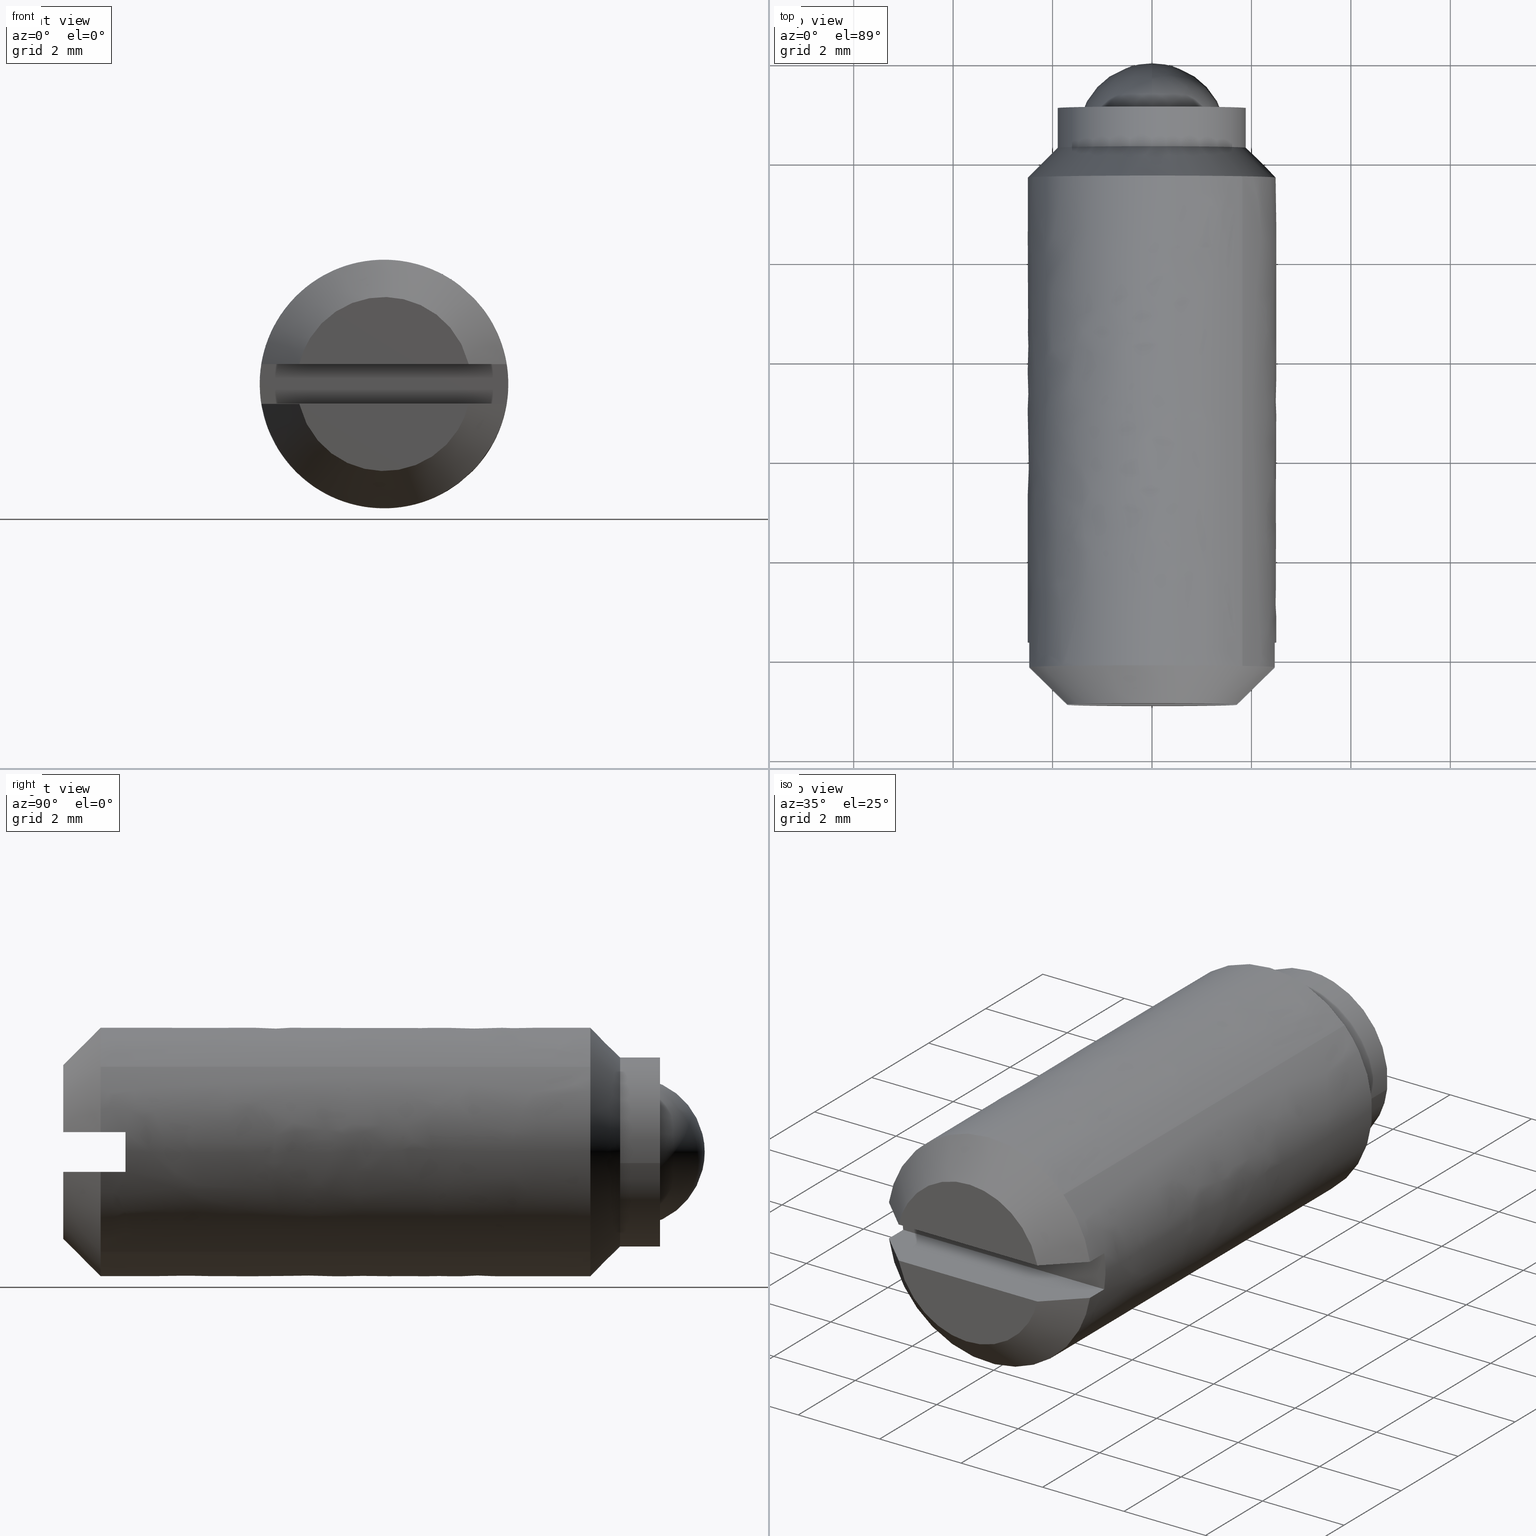
[diagram: canonical four-view strip — front | top / right | iso, engineering-drawing reading convention]
A machine part, canonical four-view strip (front | top / right | iso — engineering-drawing reading convention). The complete STEP part file that produces these views, byte-faithful:
ISO-10303-21;
HEADER;
/****************************************************************
 * Generated by software with PDE/Lib inside                    *
 * PDElib Version 4.4.1-0003, patched  Thursday August 19 11:58 *
 * International Technegroup Inc. (www.iti-oh.com)              *
 ****************************************************************/
FILE_DESCRIPTION((''),'2;1');
FILE_NAME('','2005-07-15T11:27:23',(''),(''),'','CADfix','');
FILE_SCHEMA(('AUTOMOTIVE_DESIGN'));
ENDSEC;
DATA;
#5=APPLICATION_CONTEXT('automotive design');
#6=APPLICATION_PROTOCOL_DEFINITION('Draft International Standard','automotive_design',1998,#5);
#7=PRODUCT_CONTEXT('None',#5,'mechanical');
#8=PRODUCT('body','','None',(#7));
#9=PRODUCT_RELATED_PRODUCT_CATEGORY('part','description',(#8));
#10=PRODUCT_DEFINITION_FORMATION('None','None',#8);
#11=PRODUCT_DEFINITION_CONTEXT('part definition',#5,'design');
#12=PRODUCT_DEFINITION('None','None',#10,#11);
#18=(NAMED_UNIT(*)PLANE_ANGLE_UNIT()SI_UNIT($,.RADIAN.));
#19=DIMENSIONAL_EXPONENTS(0.0,0.0,0.0,0.0,0.0,0.0,0.0);
#20=PLANE_ANGLE_MEASURE_WITH_UNIT(PLANE_ANGLE_MEASURE(0.017453292500000),#18);
#24=(CONVERSION_BASED_UNIT('DEGREE',#20)NAMED_UNIT(#19)PLANE_ANGLE_UNIT());
#28=(NAMED_UNIT(*)SI_UNIT($,.STERADIAN.)SOLID_ANGLE_UNIT());
#32=(LENGTH_UNIT()NAMED_UNIT(*)SI_UNIT(.MILLI.,.METRE.));
#34=UNCERTAINTY_MEASURE_WITH_UNIT(LENGTH_MEASURE(0.001000000000000),#32,'DISTANCE_ACCURACY_VALUE','');
#36=(GEOMETRIC_REPRESENTATION_CONTEXT(3)GLOBAL_UNCERTAINTY_ASSIGNED_CONTEXT((#34))GLOBAL_UNIT_ASSIGNED_CONTEXT((#24,#28,#32))REPRESENTATION_CONTEXT('None','None'));
#37=AXIS2_PLACEMENT_3D('',#38,#39,#40);
#38=CARTESIAN_POINT('',(0.0,0.0,0.0));
#39=DIRECTION('',(0.0,0.0,1.0));
#40=DIRECTION('',(1.0,0.0,0.0));
#41=ADVANCED_BREP_SHAPE_REPRESENTATION('',(#37,#1005,#1216),#36);
#42=PRODUCT_DEFINITION_SHAPE('','',#12);
#43=SHAPE_DEFINITION_REPRESENTATION(#42,#41);
#44=CARTESIAN_POINT('',(-1.489514289545500,-0.810000000000013,0.177051351985138));
#45=CARTESIAN_POINT('',(-1.494581423172908,-0.810000000000013,0.134422092956966));
#46=CARTESIAN_POINT('',(-1.497202197632800,-0.810000000000013,0.091572809302285));
#47=CARTESIAN_POINT('',(-1.588775006935085,-0.810000000000013,-1.405629388330515));
#48=CARTESIAN_POINT('',(-0.091572809302285,-0.810000000000013,-1.497202197632800));
#49=CARTESIAN_POINT('',(1.405629388330515,-0.810000000000013,-1.588775006935085));
#50=CARTESIAN_POINT('',(1.497202197632800,-0.810000000000013,-0.091572809302285));
#51=CARTESIAN_POINT('',(-1.489514289545500,-4.592249999999949,0.177051351985138));
#52=CARTESIAN_POINT('',(-1.494581423172908,-4.592249999999949,0.134422092956966));
#53=CARTESIAN_POINT('',(-1.497202197632800,-4.592249999999948,0.091572809302285));
#54=CARTESIAN_POINT('',(-1.588775006935085,-4.592249999999949,-1.405629388330515));
#55=CARTESIAN_POINT('',(-0.091572809302285,-4.592249999999948,-1.497202197632800));
#56=CARTESIAN_POINT('',(1.405629388330515,-4.592249999999949,-1.588775006935085));
#57=CARTESIAN_POINT('',(1.497202197632800,-4.592249999999948,-0.091572809302285));
#65=(BOUNDED_SURFACE()B_SPLINE_SURFACE(2,1,((#44,#51),(#45,#52),(#46,#53),(#47,#54),(#48,#55),(#49,#56),(#50,#57)),.UNSPECIFIED.,.F.,.F.,.U.)B_SPLINE_SURFACE_WITH_KNOTS((3,2,2,3),(2,2),(3.078760800517997,3.141592653589793,4.712388980384690,6.283185307179586),(0.0,3.782249999999936),.UNSPECIFIED.)GEOMETRIC_REPRESENTATION_ITEM()RATIONAL_B_SPLINE_SURFACE(((0.977505800795127,0.977505800795127),(0.988284271247462,0.988284271247462),(1.0,1.0),(0.707106781186548,0.707106781186548),(1.0,1.0),(0.707106781186548,0.707106781186548),(1.0,1.0)))REPRESENTATION_ITEM('')SURFACE());
#66=CARTESIAN_POINT('',(-1.489514289544791,-4.499999999999949,0.177051351991101));
#67=VERTEX_POINT('',#66);
#68=CARTESIAN_POINT('',(0.0,-4.499999999999949,-1.500000000000000));
#69=VERTEX_POINT('',#68);
#70=CARTESIAN_POINT('',(-1.489514289544791,-4.499999999999949,0.177051351991101));
#71=CARTESIAN_POINT('',(-1.500000000000000,-4.499999999999949,0.088836179483891));
#72=CARTESIAN_POINT('',(-1.500000000000000,-4.499999999999949,0.0));
#73=CARTESIAN_POINT('',(-1.500000000000000,-4.499999999999949,-1.500000000000000));
#74=CARTESIAN_POINT('',(0.0,-4.499999999999949,-1.500000000000000));
#82=(BOUNDED_CURVE()B_SPLINE_CURVE(2,(#70,#71,#72,#73,#74),.UNSPECIFIED.,.F.,.U.)B_SPLINE_CURVE_WITH_KNOTS((3,2,3),(0.229562473514291,0.250000000000000,0.500000000000000),.UNSPECIFIED.)CURVE()GEOMETRIC_REPRESENTATION_ITEM()RATIONAL_B_SPLINE_CURVE((0.956026754185233,0.976055948332062,1.0,0.707106781186548,1.0))REPRESENTATION_ITEM(''));
#83=EDGE_CURVE('',#67,#69,#82,.T.);
#84=ORIENTED_EDGE('',*,*,#83,.T.);
#85=CARTESIAN_POINT('',(1.497202298754861,-4.499999999999957,-0.091571155941247));
#86=VERTEX_POINT('',#85);
#87=CARTESIAN_POINT('',(0.0,-4.499999999999949,-1.500000000000000));
#88=CARTESIAN_POINT('',(1.411060661504276,-4.499999999999949,-1.499999999999999));
#89=CARTESIAN_POINT('',(1.497202298754861,-4.499999999999957,-0.091571155941247));
#97=(BOUNDED_CURVE()B_SPLINE_CURVE(2,(#87,#88,#89),.UNSPECIFIED.,.F.,.U.)B_SPLINE_CURVE_WITH_KNOTS((3,3),(0.500000000000000,0.739333152785491),.UNSPECIFIED.)CURVE()GEOMETRIC_REPRESENTATION_ITEM()RATIONAL_B_SPLINE_CURVE((1.0,0.719603770047544,0.976072450044581))REPRESENTATION_ITEM(''));
#98=EDGE_CURVE('',#69,#86,#97,.T.);
#99=ORIENTED_EDGE('',*,*,#98,.T.);
#100=CARTESIAN_POINT('',(1.497202297505339,-0.900000000000012,-0.091571176371491));
#101=VERTEX_POINT('',#100);
#102=CARTESIAN_POINT('',(1.497202297505339,-0.900000000000012,-0.091571176371491));
#103=CARTESIAN_POINT('',(1.497202298754861,-4.499999999999957,-0.091571155941247));
#104=QUASI_UNIFORM_CURVE('',1,(#102,#103),.UNSPECIFIED.,.F.,.U.);
#105=EDGE_CURVE('',#101,#86,#104,.T.);
#106=ORIENTED_EDGE('',*,*,#105,.F.);
#107=CARTESIAN_POINT('',(0.0,-0.900000000000012,-1.500000000000000));
#108=VERTEX_POINT('',#107);
#109=CARTESIAN_POINT('',(0.0,-0.900000000000012,-1.500000000000000));
#110=CARTESIAN_POINT('',(1.411060642213509,-0.900000000000012,-1.500000000000001));
#111=CARTESIAN_POINT('',(1.497202297505339,-0.900000000000012,-0.091571176371491));
#119=(BOUNDED_CURVE()B_SPLINE_CURVE(2,(#109,#110,#111),.UNSPECIFIED.,.F.,.U.)B_SPLINE_CURVE_WITH_KNOTS((3,3),(0.500000000000000,0.739333150430983),.UNSPECIFIED.)CURVE()GEOMETRIC_REPRESENTATION_ITEM()RATIONAL_B_SPLINE_CURVE((1.0,0.719603772806021,0.976072444998415))REPRESENTATION_ITEM(''));
#120=EDGE_CURVE('',#108,#101,#119,.T.);
#121=ORIENTED_EDGE('',*,*,#120,.F.);
#122=CARTESIAN_POINT('',(-1.489514289544791,-0.900000000000012,0.177051351991101));
#123=VERTEX_POINT('',#122);
#124=CARTESIAN_POINT('',(-1.489514289544791,-0.900000000000012,0.177051351991101));
#125=CARTESIAN_POINT('',(-1.500000000000000,-0.900000000000012,0.088836179483891));
#126=CARTESIAN_POINT('',(-1.500000000000000,-0.900000000000012,0.0));
#127=CARTESIAN_POINT('',(-1.500000000000000,-0.900000000000012,-1.500000000000000));
#128=CARTESIAN_POINT('',(0.0,-0.900000000000012,-1.500000000000000));
#136=(BOUNDED_CURVE()B_SPLINE_CURVE(2,(#124,#125,#126,#127,#128),.UNSPECIFIED.,.F.,.U.)B_SPLINE_CURVE_WITH_KNOTS((3,2,3),(0.229562473514291,0.250000000000000,0.500000000000000),.UNSPECIFIED.)CURVE()GEOMETRIC_REPRESENTATION_ITEM()RATIONAL_B_SPLINE_CURVE((0.956026754185233,0.976055948332062,1.0,0.707106781186548,1.0))REPRESENTATION_ITEM(''));
#137=EDGE_CURVE('',#123,#108,#136,.T.);
#138=ORIENTED_EDGE('',*,*,#137,.F.);
#139=CARTESIAN_POINT('',(-1.489514289544791,-0.900000000000012,0.177051351991101));
#140=CARTESIAN_POINT('',(-1.489514289544791,-4.499999999999949,0.177051351991101));
#141=QUASI_UNIFORM_CURVE('',1,(#139,#140),.UNSPECIFIED.,.F.,.U.);
#142=EDGE_CURVE('',#123,#67,#141,.T.);
#143=ORIENTED_EDGE('',*,*,#142,.T.);
#144=EDGE_LOOP('',(#84,#99,#106,#121,#138,#143));
#145=FACE_OUTER_BOUND('',#144,.T.);
#146=ADVANCED_FACE('',(#145),#65,.F.);
#147=CARTESIAN_POINT('',(1.497202197632800,-0.810000000000013,-0.091572809302285));
#148=CARTESIAN_POINT('',(1.588775006935085,-0.810000000000013,1.405629388330515));
#149=CARTESIAN_POINT('',(0.091572809302285,-0.810000000000013,1.497202197632800));
#150=CARTESIAN_POINT('',(-1.322315236259252,-0.810000000000013,1.583679295098791));
#151=CARTESIAN_POINT('',(-1.489514289545500,-0.810000000000013,0.177051351985138));
#152=CARTESIAN_POINT('',(1.497202197632800,-4.592249999999948,-0.091572809302285));
#153=CARTESIAN_POINT('',(1.588775006935085,-4.592249999999949,1.405629388330515));
#154=CARTESIAN_POINT('',(0.091572809302285,-4.592249999999948,1.497202197632800));
#155=CARTESIAN_POINT('',(-1.322315236259252,-4.592249999999948,1.583679295098791));
#156=CARTESIAN_POINT('',(-1.489514289545500,-4.592249999999949,0.177051351985138));
#164=(BOUNDED_SURFACE()B_SPLINE_SURFACE(2,1,((#147,#152),(#148,#153),(#149,#154),(#150,#155),(#151,#156)),.UNSPECIFIED.,.F.,.F.,.U.)B_SPLINE_SURFACE_WITH_KNOTS((3,2,3),(2,2),(0.0,1.570796326794897,3.078760800517997),(0.0,3.782249999999936),.UNSPECIFIED.)GEOMETRIC_REPRESENTATION_ITEM()RATIONAL_B_SPLINE_SURFACE(((1.0,1.0),(0.707106781186548,0.707106781186548),(1.0,1.0),(0.718822509939086,0.718822509939086),(0.977505800795127,0.977505800795127)))REPRESENTATION_ITEM('')SURFACE());
#165=CARTESIAN_POINT('',(0.0,-4.499999999999949,1.500000000000000));
#166=VERTEX_POINT('',#165);
#167=CARTESIAN_POINT('',(0.0,-4.499999999999949,1.500000000000000));
#168=CARTESIAN_POINT('',(-1.332261788916308,-4.499999999999949,1.499999999999999));
#169=CARTESIAN_POINT('',(-1.489514289544791,-4.499999999999949,0.177051351991101));
#177=(BOUNDED_CURVE()B_SPLINE_CURVE(2,(#167,#168,#169),.UNSPECIFIED.,.F.,.U.)B_SPLINE_CURVE_WITH_KNOTS((3,3),(0.0,0.229562473514291),.UNSPECIFIED.)CURVE()GEOMETRIC_REPRESENTATION_ITEM()RATIONAL_B_SPLINE_CURVE((1.0,0.731050832854486,0.956026754185233))REPRESENTATION_ITEM(''));
#178=EDGE_CURVE('',#166,#67,#177,.T.);
#179=ORIENTED_EDGE('',*,*,#178,.T.);
#180=ORIENTED_EDGE('',*,*,#142,.F.);
#181=CARTESIAN_POINT('',(0.0,-0.900000000000012,1.500000000000000));
#182=VERTEX_POINT('',#181);
#183=CARTESIAN_POINT('',(0.0,-0.900000000000012,1.500000000000000));
#184=CARTESIAN_POINT('',(-1.332261788916308,-0.900000000000012,1.499999999999999));
#185=CARTESIAN_POINT('',(-1.489514289544791,-0.900000000000012,0.177051351991101));
#193=(BOUNDED_CURVE()B_SPLINE_CURVE(2,(#183,#184,#185),.UNSPECIFIED.,.F.,.U.)B_SPLINE_CURVE_WITH_KNOTS((3,3),(0.0,0.229562473514291),.UNSPECIFIED.)CURVE()GEOMETRIC_REPRESENTATION_ITEM()RATIONAL_B_SPLINE_CURVE((1.0,0.731050832854486,0.956026754185233))REPRESENTATION_ITEM(''));
#194=EDGE_CURVE('',#182,#123,#193,.T.);
#195=ORIENTED_EDGE('',*,*,#194,.F.);
#196=CARTESIAN_POINT('',(1.497202297505339,-0.900000000000012,-0.091571176371491));
#197=CARTESIAN_POINT('',(1.500000000000000,-0.900000000000012,-0.045828326193265));
#198=CARTESIAN_POINT('',(1.500000000000000,-0.900000000000012,0.0));
#199=CARTESIAN_POINT('',(1.500000000000000,-0.900000000000012,1.500000000000000));
#200=CARTESIAN_POINT('',(0.0,-0.900000000000012,1.500000000000000));
#208=(BOUNDED_CURVE()B_SPLINE_CURVE(2,(#196,#197,#198,#199,#200),.UNSPECIFIED.,.F.,.U.)B_SPLINE_CURVE_WITH_KNOTS((3,2,3),(0.739333150430983,0.750000000000000,1.0),.UNSPECIFIED.)CURVE()GEOMETRIC_REPRESENTATION_ITEM()RATIONAL_B_SPLINE_CURVE((0.976072444998415,0.987503008380527,1.0,0.707106781186548,1.0))REPRESENTATION_ITEM(''));
#209=EDGE_CURVE('',#101,#182,#208,.T.);
#210=ORIENTED_EDGE('',*,*,#209,.F.);
#211=ORIENTED_EDGE('',*,*,#105,.T.);
#212=CARTESIAN_POINT('',(1.497202298754861,-4.499999999999957,-0.091571155941247));
#213=CARTESIAN_POINT('',(1.500000000000000,-4.499999999999950,-0.045828315949502));
#214=CARTESIAN_POINT('',(1.500000000000000,-4.499999999999949,0.0));
#215=CARTESIAN_POINT('',(1.500000000000000,-4.499999999999949,1.500000000000000));
#216=CARTESIAN_POINT('',(0.0,-4.499999999999949,1.500000000000000));
#224=(BOUNDED_CURVE()B_SPLINE_CURVE(2,(#212,#213,#214,#215,#216),.UNSPECIFIED.,.F.,.U.)B_SPLINE_CURVE_WITH_KNOTS((3,2,3),(0.739333152785491,0.750000000000000,1.0),.UNSPECIFIED.)CURVE()GEOMETRIC_REPRESENTATION_ITEM()RATIONAL_B_SPLINE_CURVE((0.976072450044581,0.987503011139004,1.0,0.707106781186548,1.0))REPRESENTATION_ITEM(''));
#225=EDGE_CURVE('',#86,#166,#224,.T.);
#226=ORIENTED_EDGE('',*,*,#225,.T.);
#227=EDGE_LOOP('',(#179,#180,#195,#210,#211,#226));
#228=FACE_OUTER_BOUND('',#227,.T.);
#229=ADVANCED_FACE('',(#228),#164,.F.);
#230=CARTESIAN_POINT('',(1.886718100090966,-0.880000000000000,-0.224265045847842));
#231=CARTESIAN_POINT('',(1.893136469352351,-0.880000000000000,-0.170267984412158));
#232=CARTESIAN_POINT('',(1.896456117001547,-0.880000000000000,-0.115992225116229));
#233=CARTESIAN_POINT('',(2.012448342117775,-0.880000000000000,1.780463891885318));
#234=CARTESIAN_POINT('',(0.115992225116228,-0.880000000000000,1.896456117001546));
#235=CARTESIAN_POINT('',(-1.780463891885319,-0.880000000000000,2.012448342117774));
#236=CARTESIAN_POINT('',(-1.896456117001547,-0.880000000000000,0.115992225116227));
#237=CARTESIAN_POINT('',(1.886718100090966,-1.720500000000000,-0.224265045847842));
#238=CARTESIAN_POINT('',(1.893136469352351,-1.720500000000001,-0.170267984412158));
#239=CARTESIAN_POINT('',(1.896456117001547,-1.720500000000000,-0.115992225116229));
#240=CARTESIAN_POINT('',(2.012448342117775,-1.720500000000000,1.780463891885318));
#241=CARTESIAN_POINT('',(0.115992225116228,-1.720500000000000,1.896456117001546));
#242=CARTESIAN_POINT('',(-1.780463891885319,-1.720500000000000,2.012448342117774));
#243=CARTESIAN_POINT('',(-1.896456117001547,-1.720500000000000,0.115992225116227));
#251=(BOUNDED_SURFACE()B_SPLINE_SURFACE(2,1,((#230,#237),(#231,#238),(#232,#239),(#233,#240),(#234,#241),(#235,#242),(#236,#243)),.UNSPECIFIED.,.F.,.F.,.U.)B_SPLINE_SURFACE_WITH_KNOTS((3,2,2,3),(2,2),(0.0,0.125920922961421,3.273943996996943,6.421967071032465),(0.0,1.0),.UNSPECIFIED.)GEOMETRIC_REPRESENTATION_ITEM()RATIONAL_B_SPLINE_SURFACE(((0.977505800795127,0.977505800795127),(0.988284271247462,0.988284271247462),(1.0,1.0),(0.707106781186548,0.707106781186548),(1.0,1.0),(0.707106781186548,0.707106781186548),(1.0,1.0)))REPRESENTATION_ITEM('')SURFACE());
#252=CARTESIAN_POINT('',(1.886718476477220,-0.899999999999935,-0.224261879304770));
#253=VERTEX_POINT('',#252);
#254=CARTESIAN_POINT('',(0.0,-0.900000000000000,1.899999999999999));
#255=VERTEX_POINT('',#254);
#256=CARTESIAN_POINT('',(1.886718476477220,-0.899999999999935,-0.224261879304770));
#257=CARTESIAN_POINT('',(1.900000000000000,-0.900000000000000,-0.112524227329348));
#258=CARTESIAN_POINT('',(1.900000000000000,-0.900000000000000,-8.511014E-016));
#259=CARTESIAN_POINT('',(1.900000000000000,-0.900000000000000,1.899999999999998));
#260=CARTESIAN_POINT('',(0.0,-0.900000000000000,1.899999999999999));
#268=(BOUNDED_CURVE()B_SPLINE_CURVE(2,(#256,#257,#258,#259,#260),.UNSPECIFIED.,.F.,.U.)B_SPLINE_CURVE_WITH_KNOTS((3,2,3),(0.229562757159565,0.250000000000000,0.500000000000000),.UNSPECIFIED.)CURVE()GEOMETRIC_REPRESENTATION_ITEM()RATIONAL_B_SPLINE_CURVE((0.956027310142333,0.976056280643172,1.0,0.707106781186547,1.0))REPRESENTATION_ITEM(''));
#269=EDGE_CURVE('',#253,#255,#268,.T.);
#270=ORIENTED_EDGE('',*,*,#269,.T.);
#271=CARTESIAN_POINT('',(-1.896456117001057,-0.900000000000000,0.115992225124233));
#272=VERTEX_POINT('',#271);
#273=CARTESIAN_POINT('',(0.0,-0.900000000000000,1.899999999999999));
#274=CARTESIAN_POINT('',(-1.787341527105691,-0.900000000000000,1.899999999999999));
#275=CARTESIAN_POINT('',(-1.896456117001057,-0.900000000000000,0.115992225124233));
#283=(BOUNDED_CURVE()B_SPLINE_CURVE(2,(#273,#274,#275),.UNSPECIFIED.,.F.,.U.)B_SPLINE_CURVE_WITH_KNOTS((3,3),(0.500000000000000,0.739332962240510),.UNSPECIFIED.)CURVE()GEOMETRIC_REPRESENTATION_ITEM()RATIONAL_B_SPLINE_CURVE((1.0,0.719603993284874,0.976072041670077))REPRESENTATION_ITEM(''));
#284=EDGE_CURVE('',#255,#272,#283,.T.);
#285=ORIENTED_EDGE('',*,*,#284,.T.);
#286=CARTESIAN_POINT('',(-1.896456117002499,-1.700000000003540,0.115992225129656));
#287=VERTEX_POINT('',#286);
#288=CARTESIAN_POINT('',(-1.896456117001057,-0.900000000000000,0.115992225124233));
#289=CARTESIAN_POINT('',(-1.896456117002499,-1.700000000003540,0.115992225129656));
#290=QUASI_UNIFORM_CURVE('',1,(#288,#289),.UNSPECIFIED.,.F.,.U.);
#291=EDGE_CURVE('',#272,#287,#290,.T.);
#292=ORIENTED_EDGE('',*,*,#291,.T.);
#293=CARTESIAN_POINT('',(0.0,-1.700000000000000,1.899999999999999));
#294=VERTEX_POINT('',#293);
#295=CARTESIAN_POINT('',(0.0,-1.700000000000000,1.899999999999999));
#296=CARTESIAN_POINT('',(-1.787341527070503,-1.700000000000000,1.899999999999998));
#297=CARTESIAN_POINT('',(-1.896456117002499,-1.700000000003540,0.115992225129656));
#305=(BOUNDED_CURVE()B_SPLINE_CURVE(2,(#295,#296,#297),.UNSPECIFIED.,.F.,.U.)B_SPLINE_CURVE_WITH_KNOTS((3,3),(0.500000000000000,0.739332962237120),.UNSPECIFIED.)CURVE()GEOMETRIC_REPRESENTATION_ITEM()RATIONAL_B_SPLINE_CURVE((1.0,0.719603993288846,0.976072041662811))REPRESENTATION_ITEM(''));
#306=EDGE_CURVE('',#294,#287,#305,.T.);
#307=ORIENTED_EDGE('',*,*,#306,.F.);
#308=CARTESIAN_POINT('',(1.886718471939577,-1.700000000000000,-0.224261917480567));
#309=VERTEX_POINT('',#308);
#310=CARTESIAN_POINT('',(1.886718471939578,-1.700000000000000,-0.224261917480567));
#311=CARTESIAN_POINT('',(1.900000000000000,-1.700000000000000,-0.112524246619032));
#312=CARTESIAN_POINT('',(1.900000000000000,-1.700000000000000,-8.511014E-016));
#313=CARTESIAN_POINT('',(1.900000000000000,-1.700000000000001,1.899999999999998));
#314=CARTESIAN_POINT('',(0.0,-1.700000000000000,1.899999999999999));
#322=(BOUNDED_CURVE()B_SPLINE_CURVE(2,(#310,#311,#312,#313,#314),.UNSPECIFIED.,.F.,.U.)B_SPLINE_CURVE_WITH_KNOTS((3,2,3),(0.229562753739958,0.250000000000000,0.500000000000000),.UNSPECIFIED.)CURVE()GEOMETRIC_REPRESENTATION_ITEM()RATIONAL_B_SPLINE_CURVE((0.956027303439745,0.976056276636852,1.0,0.707106781186547,1.0))REPRESENTATION_ITEM(''));
#323=EDGE_CURVE('',#309,#294,#322,.T.);
#324=ORIENTED_EDGE('',*,*,#323,.F.);
#325=CARTESIAN_POINT('',(1.886718476477220,-0.899999999999935,-0.224261879304770));
#326=CARTESIAN_POINT('',(1.886718471939577,-1.700000000000000,-0.224261917480567));
#327=QUASI_UNIFORM_CURVE('',1,(#325,#326),.UNSPECIFIED.,.F.,.U.);
#328=EDGE_CURVE('',#253,#309,#327,.T.);
#329=ORIENTED_EDGE('',*,*,#328,.F.);
#330=EDGE_LOOP('',(#270,#285,#292,#307,#324,#329));
#331=FACE_OUTER_BOUND('',#330,.T.);
#332=ADVANCED_FACE('',(#331),#251,.T.);
#333=CARTESIAN_POINT('',(-1.894857721785848,-0.880000000000000,0.142125755886582));
#334=CARTESIAN_POINT('',(-1.895654631978397,-0.879999999999999,0.129096389410968));
#335=CARTESIAN_POINT('',(-2.012448342117775,-0.880000000000000,-1.780463891885319));
#336=CARTESIAN_POINT('',(-0.115992225116228,-0.880000000000000,-1.896456117001548));
#337=CARTESIAN_POINT('',(1.674932632595051,-0.880000000000000,-2.005993773791804));
#338=CARTESIAN_POINT('',(1.888303844454935,-0.880000000000000,-0.210924346309455));
#339=CARTESIAN_POINT('',(1.889881066098256,-0.880000000000000,-0.197655347518057));
#340=CARTESIAN_POINT('',(-1.894857721785848,-1.720500000000001,0.142125755886582));
#341=CARTESIAN_POINT('',(-1.895654631978397,-1.720500000000000,0.129096389410968));
#342=CARTESIAN_POINT('',(-2.012448342117775,-1.720500000000000,-1.780463891885319));
#343=CARTESIAN_POINT('',(-0.115992225116228,-1.720500000000000,-1.896456117001548));
#344=CARTESIAN_POINT('',(1.674932632595051,-1.720500000000000,-2.005993773791804));
#345=CARTESIAN_POINT('',(1.888303844454935,-1.720500000000000,-0.210924346309455));
#346=CARTESIAN_POINT('',(1.889881066098256,-1.720500000000001,-0.197655347518057));
#354=(BOUNDED_SURFACE()B_SPLINE_SURFACE(2,1,((#333,#340),(#334,#341),(#335,#342),(#336,#343),(#337,#344),(#338,#345),(#339,#346)),.UNSPECIFIED.,.F.,.F.,.U.)B_SPLINE_SURFACE_WITH_KNOTS((3,1,2,1,3),(2,2),(0.0,0.030850643711267,3.178873717746789,6.200975868820890,6.231830164430668),(0.0,1.0),.UNSPECIFIED.)GEOMETRIC_REPRESENTATION_ITEM()RATIONAL_B_SPLINE_SURFACE(((1.005740710361107,1.005740710361107),(1.002870355180554,1.002870355180554),(0.707106781186548,0.707106781186548),(1.0,1.0),(0.718822509939086,0.718822509939086),(0.980146840153292,0.980146840153292),(0.982787879511457,0.982787879511457)))REPRESENTATION_ITEM('')SURFACE());
#355=CARTESIAN_POINT('',(0.0,-0.900000000000000,-1.900000000000001));
#356=VERTEX_POINT('',#355);
#357=CARTESIAN_POINT('',(0.0,-0.900000000000000,-1.900000000000001));
#358=CARTESIAN_POINT('',(1.687534451488845,-0.900000000000000,-1.900000000000002));
#359=CARTESIAN_POINT('',(1.886718476477220,-0.899999999999935,-0.224261879304770));
#367=(BOUNDED_CURVE()B_SPLINE_CURVE(2,(#357,#358,#359),.UNSPECIFIED.,.F.,.U.)B_SPLINE_CURVE_WITH_KNOTS((3,3),(0.0,0.229562757159565),.UNSPECIFIED.)CURVE()GEOMETRIC_REPRESENTATION_ITEM()RATIONAL_B_SPLINE_CURVE((1.0,0.731050500543376,0.956027310142333))REPRESENTATION_ITEM(''));
#368=EDGE_CURVE('',#356,#253,#367,.T.);
#369=ORIENTED_EDGE('',*,*,#368,.T.);
#370=ORIENTED_EDGE('',*,*,#328,.T.);
#371=CARTESIAN_POINT('',(0.0,-1.700000000000000,-1.900000000000001));
#372=VERTEX_POINT('',#371);
#373=CARTESIAN_POINT('',(0.0,-1.700000000000000,-1.900000000000001));
#374=CARTESIAN_POINT('',(1.687534417102971,-1.700000000000001,-1.900000000000001));
#375=CARTESIAN_POINT('',(1.886718471939578,-1.700000000000000,-0.224261917480567));
#383=(BOUNDED_CURVE()B_SPLINE_CURVE(2,(#373,#374,#375),.UNSPECIFIED.,.F.,.U.)B_SPLINE_CURVE_WITH_KNOTS((3,3),(0.0,0.229562753739958),.UNSPECIFIED.)CURVE()GEOMETRIC_REPRESENTATION_ITEM()RATIONAL_B_SPLINE_CURVE((1.0,0.731050504549695,0.956027303439745))REPRESENTATION_ITEM(''));
#384=EDGE_CURVE('',#372,#309,#383,.T.);
#385=ORIENTED_EDGE('',*,*,#384,.F.);
#386=CARTESIAN_POINT('',(-0.668074151346452,-1.700000000000239,-1.778672799674979));
#387=VERTEX_POINT('',#386);
#388=CARTESIAN_POINT('',(-0.668074151346452,-1.700000000000240,-1.778672799674979));
#389=CARTESIAN_POINT('',(-0.345054033529472,-1.700000000000000,-1.900000000000001));
#390=CARTESIAN_POINT('',(0.0,-1.700000000000000,-1.900000000000001));
#398=(BOUNDED_CURVE()B_SPLINE_CURVE(2,(#388,#389,#390),.UNSPECIFIED.,.F.,.U.)B_SPLINE_CURVE_WITH_KNOTS((3,3),(0.940284170898487,1.0),.UNSPECIFIED.)CURVE()GEOMETRIC_REPRESENTATION_ITEM()RATIONAL_B_SPLINE_CURVE((0.893499554635248,0.930038554401375,1.0))REPRESENTATION_ITEM(''));
#399=EDGE_CURVE('',#387,#372,#398,.T.);
#400=ORIENTED_EDGE('',*,*,#399,.F.);
#401=CARTESIAN_POINT('',(-1.896456117002499,-1.700000000003540,0.115992225129656));
#402=CARTESIAN_POINT('',(-1.900000000000000,-1.700000000000000,0.058050250294034));
#403=CARTESIAN_POINT('',(-1.900000000000000,-1.700000000000000,-8.511014E-016));
#404=CARTESIAN_POINT('',(-1.900000000000000,-1.700000000000000,-1.315958231815637));
#405=CARTESIAN_POINT('',(-0.668074151346452,-1.700000000000239,-1.778672799674979));
#413=(BOUNDED_CURVE()B_SPLINE_CURVE(2,(#401,#402,#403,#404,#405),.UNSPECIFIED.,.F.,.U.)B_SPLINE_CURVE_WITH_KNOTS((3,2,3),(0.739332962237120,0.750000000000000,0.940284170898487),.UNSPECIFIED.)CURVE()GEOMETRIC_REPRESENTATION_ITEM()RATIONAL_B_SPLINE_CURVE((0.976072041662812,0.987502787897702,1.0,0.777068226785173,0.893499554635248))REPRESENTATION_ITEM(''));
#414=EDGE_CURVE('',#287,#387,#413,.T.);
#415=ORIENTED_EDGE('',*,*,#414,.F.);
#416=ORIENTED_EDGE('',*,*,#291,.F.);
#417=CARTESIAN_POINT('',(-1.896456117001057,-0.900000000000000,0.115992225124233));
#418=CARTESIAN_POINT('',(-1.900000000000000,-0.900000000000000,0.058050250275346));
#419=CARTESIAN_POINT('',(-1.900000000000000,-0.900000000000000,-8.511014E-016));
#420=CARTESIAN_POINT('',(-1.900000000000000,-0.900000000000000,-1.900000000000001));
#421=CARTESIAN_POINT('',(0.0,-0.900000000000000,-1.900000000000001));
#429=(BOUNDED_CURVE()B_SPLINE_CURVE(2,(#417,#418,#419,#420,#421),.UNSPECIFIED.,.F.,.U.)B_SPLINE_CURVE_WITH_KNOTS((3,2,3),(0.739332962240511,0.750000000000000,1.0),.UNSPECIFIED.)CURVE()GEOMETRIC_REPRESENTATION_ITEM()RATIONAL_B_SPLINE_CURVE((0.976072041670080,0.987502787901675,1.0,0.707106781186547,1.0))REPRESENTATION_ITEM(''));
#430=EDGE_CURVE('',#272,#356,#429,.T.);
#431=ORIENTED_EDGE('',*,*,#430,.T.);
#432=EDGE_LOOP('',(#369,#370,#385,#400,#415,#416,#431));
#433=FACE_OUTER_BOUND('',#432,.T.);
#434=ADVANCED_FACE('',(#433),#354,.T.);
#435=CARTESIAN_POINT('',(-0.662799881728113,-1.685000000000000,-1.764630645993999));
#436=CARTESIAN_POINT('',(-0.397715116483545,-1.684999999999999,-1.864197176503309));
#437=CARTESIAN_POINT('',(-0.115076497023205,-1.685000000000000,-1.881484095025219));
#438=CARTESIAN_POINT('',(1.766407598002012,-1.685000000000001,-1.996560592048424));
#439=CARTESIAN_POINT('',(1.881484095025218,-1.685000000000000,-0.115076497023206));
#440=CARTESIAN_POINT('',(1.996560592048424,-1.685000000000001,1.766407598002012));
#441=CARTESIAN_POINT('',(0.115076497023205,-1.685000000000000,1.881484095025217));
#442=CARTESIAN_POINT('',(-1.766407598002012,-1.685000000000001,1.996560592048423));
#443=CARTESIAN_POINT('',(-1.881484095025218,-1.685000000000000,0.115076497023204));
#444=CARTESIAN_POINT('',(-0.884451062335201,-2.315375000000000,-2.354752154465334));
#445=CARTESIAN_POINT('',(-0.530717592108645,-2.315375000000000,-2.487615370210616));
#446=CARTESIAN_POINT('',(-0.153559970132491,-2.315375000000000,-2.510683318580404));
#447=CARTESIAN_POINT('',(2.357123348447912,-2.315375000000001,-2.664243288712895));
#448=CARTESIAN_POINT('',(2.510683318580403,-2.315375000000000,-0.153559970132492));
#449=CARTESIAN_POINT('',(2.664243288712894,-2.315375000000001,2.357123348447912));
#450=CARTESIAN_POINT('',(0.153559970132491,-2.315375000000000,2.510683318580402));
#451=CARTESIAN_POINT('',(-2.357123348447912,-2.315375000000001,2.664243288712894));
#452=CARTESIAN_POINT('',(-2.510683318580403,-2.315375000000000,0.153559970132490));
#460=(BOUNDED_SURFACE()B_SPLINE_SURFACE(2,1,((#435,#444),(#436,#445),(#437,#446),(#438,#447),(#439,#448),(#440,#449),(#441,#450),(#442,#451),(#443,#452)),.UNSPECIFIED.,.F.,.F.,.U.)B_SPLINE_SURFACE_WITH_KNOTS((3,2,2,2,3),(2,2),(0.0,0.833521951563379,5.001131709380275,9.168741467197171,13.336351225014070),(0.0,1.0),.UNSPECIFIED.)GEOMETRIC_REPRESENTATION_ITEM()RATIONAL_B_SPLINE_SURFACE(((0.906274169979695,0.906274169979695),(0.941421356237309,0.941421356237309),(1.0,1.0),(0.707106781186548,0.707106781186548),(1.0,1.0),(0.707106781186548,0.707106781186548),(1.0,1.0),(0.707106781186548,0.707106781186548),(1.0,1.0)))REPRESENTATION_ITEM('')SURFACE());
#461=ORIENTED_EDGE('',*,*,#399,.T.);
#462=ORIENTED_EDGE('',*,*,#384,.T.);
#463=ORIENTED_EDGE('',*,*,#323,.T.);
#464=ORIENTED_EDGE('',*,*,#306,.T.);
#465=CARTESIAN_POINT('',(-2.495336996056258,-2.300000000002961,0.152621348859628));
#466=VERTEX_POINT('',#465);
#467=CARTESIAN_POINT('',(-1.896456117002499,-1.700000000003540,0.115992225129656));
#468=CARTESIAN_POINT('',(-2.495336996056258,-2.300000000002961,0.152621348859628));
#469=QUASI_UNIFORM_CURVE('',1,(#467,#468),.UNSPECIFIED.,.F.,.U.);
#470=EDGE_CURVE('',#287,#466,#469,.T.);
#471=ORIENTED_EDGE('',*,*,#470,.T.);
#472=CARTESIAN_POINT('',(0.0,-2.300000000000000,2.499999999999999));
#473=VERTEX_POINT('',#472);
#474=CARTESIAN_POINT('',(0.0,-2.300000000000000,2.499999999999999));
#475=CARTESIAN_POINT('',(-2.351765167222105,-2.300000000000000,2.500000000000000));
#476=CARTESIAN_POINT('',(-2.495336996056259,-2.300000000002961,0.152621348859628));
#484=(BOUNDED_CURVE()B_SPLINE_CURVE(2,(#474,#475,#476),.UNSPECIFIED.,.F.,.U.)B_SPLINE_CURVE_WITH_KNOTS((3,3),(0.500000000000000,0.739332962238883),.UNSPECIFIED.)CURVE()GEOMETRIC_REPRESENTATION_ITEM()RATIONAL_B_SPLINE_CURVE((1.0,0.719603993286780,0.976072041666589))REPRESENTATION_ITEM(''));
#485=EDGE_CURVE('',#473,#466,#484,.T.);
#486=ORIENTED_EDGE('',*,*,#485,.F.);
#487=CARTESIAN_POINT('',(1.818315486528456,-2.299999999999970,1.715729813068122));
#488=VERTEX_POINT('',#487);
#489=CARTESIAN_POINT('',(1.818315486528456,-2.299999999999971,1.715729813068122));
#490=CARTESIAN_POINT('',(1.078292277158913,-2.300000000000000,2.500000000000000));
#491=CARTESIAN_POINT('',(0.0,-2.300000000000000,2.499999999999999));
#499=(BOUNDED_CURVE()B_SPLINE_CURVE(2,(#489,#490,#491),.UNSPECIFIED.,.F.,.U.)B_SPLINE_CURVE_WITH_KNOTS((3,3),(0.370620956215220,0.500000000000000),.UNSPECIFIED.)CURVE()GEOMETRIC_REPRESENTATION_ITEM()RATIONAL_B_SPLINE_CURVE((0.853733119474259,0.848423021675476,1.0))REPRESENTATION_ITEM(''));
#500=EDGE_CURVE('',#488,#473,#499,.T.);
#501=ORIENTED_EDGE('',*,*,#500,.F.);
#502=CARTESIAN_POINT('',(1.494303351258331,-2.299999999999954,-2.004259837051412));
#503=VERTEX_POINT('',#502);
#504=CARTESIAN_POINT('',(1.494303351258332,-2.299999999999953,-2.004259837051412));
#505=CARTESIAN_POINT('',(2.500000000000000,-2.300000000000000,-1.254449486241988));
#506=CARTESIAN_POINT('',(2.500000000000000,-2.300000000000000,-8.511014E-016));
#507=CARTESIAN_POINT('',(2.500000000000000,-2.300000000000000,0.993286470697336));
#508=CARTESIAN_POINT('',(1.818315486528456,-2.299999999999971,1.715729813068123));
#516=(BOUNDED_CURVE()B_SPLINE_CURVE(2,(#504,#505,#506,#507,#508),.UNSPECIFIED.,.F.,.U.)B_SPLINE_CURVE_WITH_KNOTS((3,2,3),(0.103121803616288,0.250000000000000,0.370620956215219),.UNSPECIFIED.)CURVE()GEOMETRIC_REPRESENTATION_ITEM()RATIONAL_B_SPLINE_CURVE((0.858039628780873,0.827921489150641,1.0,0.858683759511071,0.853733119474259))REPRESENTATION_ITEM(''));
#517=EDGE_CURVE('',#503,#488,#516,.T.);
#518=ORIENTED_EDGE('',*,*,#517,.F.);
#519=CARTESIAN_POINT('',(0.0,-2.300000000000000,-2.500000000000001));
#520=VERTEX_POINT('',#519);
#521=CARTESIAN_POINT('',(0.0,-2.300000000000000,-2.500000000000001));
#522=CARTESIAN_POINT('',(0.829382921732118,-2.300000000000000,-2.500000000000000));
#523=CARTESIAN_POINT('',(1.494303351258331,-2.299999999999954,-2.004259837051412));
#531=(BOUNDED_CURVE()B_SPLINE_CURVE(2,(#521,#522,#523),.UNSPECIFIED.,.F.,.U.)B_SPLINE_CURVE_WITH_KNOTS((3,3),(0.0,0.103121803616288),.UNSPECIFIED.)CURVE()GEOMETRIC_REPRESENTATION_ITEM()RATIONAL_B_SPLINE_CURVE((1.0,0.879185292035907,0.858039628780873))REPRESENTATION_ITEM(''));
#532=EDGE_CURVE('',#520,#503,#531,.T.);
#533=ORIENTED_EDGE('',*,*,#532,.F.);
#534=CARTESIAN_POINT('',(-0.879044935992926,-2.300000000001367,-2.340358946937847));
#535=VERTEX_POINT('',#534);
#536=CARTESIAN_POINT('',(-0.879044935992926,-2.300000000001368,-2.340358946937847));
#537=CARTESIAN_POINT('',(-0.454018465181815,-2.299999999999999,-2.500000000000001));
#538=CARTESIAN_POINT('',(0.0,-2.300000000000000,-2.500000000000001));
#546=(BOUNDED_CURVE()B_SPLINE_CURVE(2,(#536,#537,#538),.UNSPECIFIED.,.F.,.U.)B_SPLINE_CURVE_WITH_KNOTS((3,3),(0.940284170897085,1.0),.UNSPECIFIED.)CURVE()GEOMETRIC_REPRESENTATION_ITEM()RATIONAL_B_SPLINE_CURVE((0.893499554633533,0.930038554399733,1.0))REPRESENTATION_ITEM(''));
#547=EDGE_CURVE('',#535,#520,#546,.T.);
#548=ORIENTED_EDGE('',*,*,#547,.F.);
#549=CARTESIAN_POINT('',(-0.668074151346452,-1.700000000000239,-1.778672799674979));
#550=CARTESIAN_POINT('',(-0.879044935992926,-2.300000000001367,-2.340358946937847));
#551=QUASI_UNIFORM_CURVE('',1,(#549,#550),.UNSPECIFIED.,.F.,.U.);
#552=EDGE_CURVE('',#387,#535,#551,.T.);
#553=ORIENTED_EDGE('',*,*,#552,.F.);
#554=EDGE_LOOP('',(#461,#462,#463,#464,#471,#486,#501,#518,#533,#548,#553));
#555=FACE_OUTER_BOUND('',#554,.T.);
#556=ADVANCED_FACE('',(#555),#460,.T.);
#557=CARTESIAN_POINT('',(-1.881484095025218,-1.685000000000000,0.115076497023204));
#558=CARTESIAN_POINT('',(-1.966502165108708,-1.685000000000000,-1.274956661698778));
#559=CARTESIAN_POINT('',(-0.662799881728113,-1.685000000000000,-1.764630645993999));
#560=CARTESIAN_POINT('',(-2.510683318580403,-2.315375000000000,0.153559970132490));
#561=CARTESIAN_POINT('',(-2.624132829474971,-2.315375000000001,-1.701323136827887));
#562=CARTESIAN_POINT('',(-0.884451062335201,-2.315375000000000,-2.354752154465334));
#570=(BOUNDED_SURFACE()B_SPLINE_SURFACE(2,1,((#557,#560),(#558,#561),(#559,#562)),.UNSPECIFIED.,.F.,.F.,.U.)B_SPLINE_SURFACE_WITH_KNOTS((3,3),(2,2),(0.0,3.311362208846373),(0.0,1.0),.UNSPECIFIED.)GEOMETRIC_REPRESENTATION_ITEM()RATIONAL_B_SPLINE_SURFACE(((1.0,1.0),(0.765685424949238,0.765685424949238),(0.906274169979695,0.906274169979695)))REPRESENTATION_ITEM('')SURFACE());
#571=ORIENTED_EDGE('',*,*,#414,.T.);
#572=ORIENTED_EDGE('',*,*,#552,.T.);
#573=CARTESIAN_POINT('',(-2.495336996056259,-2.300000000002961,0.152621348859628));
#574=CARTESIAN_POINT('',(-2.500000000000000,-2.300000000000000,0.076381908268839));
#575=CARTESIAN_POINT('',(-2.500000000000000,-2.300000000000000,-8.511014E-016));
#576=CARTESIAN_POINT('',(-2.500000000000000,-2.300000000000000,-1.731523989214695));
#577=CARTESIAN_POINT('',(-0.879044935992926,-2.300000000001367,-2.340358946937847));
#585=(BOUNDED_CURVE()B_SPLINE_CURVE(2,(#573,#574,#575,#576,#577),.UNSPECIFIED.,.F.,.U.)B_SPLINE_CURVE_WITH_KNOTS((3,2,3),(0.739332962238884,0.750000000000000,0.940284170897086),.UNSPECIFIED.)CURVE()GEOMETRIC_REPRESENTATION_ITEM()RATIONAL_B_SPLINE_CURVE((0.976072041666591,0.987502787899768,1.0,0.777068226786814,0.893499554633534))REPRESENTATION_ITEM(''));
#586=EDGE_CURVE('',#466,#535,#585,.T.);
#587=ORIENTED_EDGE('',*,*,#586,.F.);
#588=ORIENTED_EDGE('',*,*,#470,.F.);
#589=EDGE_LOOP('',(#571,#572,#587,#588));
#590=FACE_OUTER_BOUND('',#589,.T.);
#591=ADVANCED_FACE('',(#590),#570,.T.);
#592=CARTESIAN_POINT('',(1.818315436100052,-2.053750000000000,1.715729866511703));
#593=CARTESIAN_POINT('',(0.290472229110461,-2.053750000000000,3.334924671844324));
#594=CARTESIAN_POINT('',(-1.494304054914435,-2.053749999999999,2.004259312430971));
#595=CARTESIAN_POINT('',(-3.498563367345406,-2.053749999999998,0.509955257516536));
#596=CARTESIAN_POINT('',(-2.004259312430972,-2.053749999999999,-1.494304054914436));
#597=CARTESIAN_POINT('',(-0.509955257516536,-2.053749999999998,-3.498563367345407));
#598=CARTESIAN_POINT('',(1.494304054914435,-2.053749999999999,-2.004259312430972));
#599=CARTESIAN_POINT('',(1.818315436100052,-12.402406250000002,1.715729866511703));
#600=CARTESIAN_POINT('',(0.290472229110461,-12.402406250000002,3.334924671844324));
#601=CARTESIAN_POINT('',(-1.494304054914435,-12.402406250000000,2.004259312430971));
#602=CARTESIAN_POINT('',(-3.498563367345406,-12.402406250000002,0.509955257516536));
#603=CARTESIAN_POINT('',(-2.004259312430972,-12.402406250000000,-1.494304054914436));
#604=CARTESIAN_POINT('',(-0.509955257516536,-12.402406250000002,-3.498563367345407));
#605=CARTESIAN_POINT('',(1.494304054914435,-12.402406250000000,-2.004259312430972));
#613=(BOUNDED_SURFACE()B_SPLINE_SURFACE(2,1,((#592,#599),(#593,#600),(#594,#601),(#595,#602),(#596,#603),(#597,#604),(#598,#605)),.UNSPECIFIED.,.F.,.F.,.U.)B_SPLINE_SURFACE_WITH_KNOTS((3,2,2,3),(2,2),(0.0,3.810764773832473,7.952900397563421,12.095036021294369),(0.0,10.348656249999999),.UNSPECIFIED.)GEOMETRIC_REPRESENTATION_ITEM()RATIONAL_B_SPLINE_SURFACE(((0.956886118190660,0.956886118190660),(0.730538238691624,0.730538238691624),(1.0,1.0),(0.707106781186548,0.707106781186548),(1.0,1.0),(0.707106781186548,0.707106781186548),(1.0,1.0)))REPRESENTATION_ITEM('')SURFACE());
#614=ORIENTED_EDGE('',*,*,#500,.T.);
#615=ORIENTED_EDGE('',*,*,#485,.T.);
#616=ORIENTED_EDGE('',*,*,#586,.T.);
#617=ORIENTED_EDGE('',*,*,#547,.T.);
#618=ORIENTED_EDGE('',*,*,#532,.T.);
#619=CARTESIAN_POINT('',(1.494304036467052,-12.150000000000000,-2.004259374637578));
#620=VERTEX_POINT('',#619);
#621=CARTESIAN_POINT('',(1.494303351258331,-2.299999999999954,-2.004259837051412));
#622=CARTESIAN_POINT('',(1.494304036467052,-12.150000000000000,-2.004259374637578));
#623=QUASI_UNIFORM_CURVE('',1,(#621,#622),.UNSPECIFIED.,.F.,.U.);
#624=EDGE_CURVE('',#503,#620,#623,.T.);
#625=ORIENTED_EDGE('',*,*,#624,.T.);
#626=CARTESIAN_POINT('',(-2.467793000000000,-12.150000000000000,-0.400000000000000));
#627=VERTEX_POINT('',#626);
#628=CARTESIAN_POINT('',(-2.467793000000000,-12.150000000000000,-0.400000000000000));
#629=CARTESIAN_POINT('',(-2.127407422512504,-12.149999999999997,-2.500000000000001));
#630=CARTESIAN_POINT('',(0.0,-12.150000000000000,-2.500000000000001));
#631=CARTESIAN_POINT('',(0.829383796575018,-12.149999999999995,-2.500000000000001));
#632=CARTESIAN_POINT('',(1.494304036467052,-12.149999999999995,-2.004259374637578));
#640=(BOUNDED_CURVE()B_SPLINE_CURVE(2,(#628,#629,#630,#631,#632),.UNSPECIFIED.,.F.,.U.)B_SPLINE_CURVE_WITH_KNOTS((3,2,3),(0.0,0.500000000000000,0.728112247232875),.UNSPECIFIED.)CURVE()GEOMETRIC_REPRESENTATION_ITEM()RATIONAL_B_SPLINE_CURVE((1.0,0.761577300960691,1.0,0.891225724661632,0.881702426877514))REPRESENTATION_ITEM(''));
#641=EDGE_CURVE('',#627,#620,#640,.T.);
#642=ORIENTED_EDGE('',*,*,#641,.F.);
#643=CARTESIAN_POINT('',(-2.467793000000000,-11.650000000000000,-0.400000000000000));
#644=VERTEX_POINT('',#643);
#645=CARTESIAN_POINT('',(-2.467793000000000,-11.650000000000000,-0.400000000000000));
#646=CARTESIAN_POINT('',(-2.467793000000000,-12.150000000000000,-0.400000000000000));
#647=QUASI_UNIFORM_CURVE('',1,(#645,#646),.UNSPECIFIED.,.F.,.U.);
#648=EDGE_CURVE('',#644,#627,#647,.T.);
#649=ORIENTED_EDGE('',*,*,#648,.F.);
#650=CARTESIAN_POINT('',(-2.467792535850615,-11.650000000000000,0.399999999999991));
#651=VERTEX_POINT('',#650);
#652=CARTESIAN_POINT('',(-2.467792535850615,-11.650000000000000,0.399999999999990));
#653=CARTESIAN_POINT('',(-2.532627801631262,-11.650000000000000,0.000000037616551));
#654=CARTESIAN_POINT('',(-2.467793000000000,-11.650000000000000,-0.400000000000000));
#662=(BOUNDED_CURVE()B_SPLINE_CURVE(2,(#652,#653,#654),.UNSPECIFIED.,.F.,.U.)CURVE()GEOMETRIC_REPRESENTATION_ITEM()QUASI_UNIFORM_CURVE()RATIONAL_B_SPLINE_CURVE((1.0,0.987117016716690,1.0))REPRESENTATION_ITEM(''));
#663=EDGE_CURVE('',#651,#644,#662,.T.);
#664=ORIENTED_EDGE('',*,*,#663,.F.);
#665=CARTESIAN_POINT('',(-2.467792535850615,-12.150000000000000,0.399999999999991));
#666=VERTEX_POINT('',#665);
#667=CARTESIAN_POINT('',(-2.467792535850615,-11.650000000000000,0.399999999999991));
#668=CARTESIAN_POINT('',(-2.467792535850615,-12.150000000000000,0.399999999999991));
#669=QUASI_UNIFORM_CURVE('',1,(#667,#668),.UNSPECIFIED.,.F.,.U.);
#670=EDGE_CURVE('',#651,#666,#669,.T.);
#671=ORIENTED_EDGE('',*,*,#670,.T.);
#672=CARTESIAN_POINT('',(1.818315981910234,-12.150000000000000,1.715729391257244));
#673=VERTEX_POINT('',#672);
#674=CARTESIAN_POINT('',(1.818315981910233,-12.149999999999999,1.715729391257244));
#675=CARTESIAN_POINT('',(1.078293002430174,-12.150000000000004,2.499999983984353));
#676=CARTESIAN_POINT('',(0.000000037131944,-12.150000000000000,2.499999999999999));
#677=CARTESIAN_POINT('',(-2.127407353370267,-12.150000000000000,2.500000031597907));
#678=CARTESIAN_POINT('',(-2.467792535850615,-12.150000000000000,0.399999999999992));
#686=(BOUNDED_CURVE()B_SPLINE_CURVE(2,(#674,#675,#676,#677,#678),.UNSPECIFIED.,.F.,.U.)B_SPLINE_CURVE_WITH_KNOTS((3,2,3),(0.212803628645489,0.500000000000000,1.0),.UNSPECIFIED.)CURVE()GEOMETRIC_REPRESENTATION_ITEM()RATIONAL_B_SPLINE_CURVE((0.883427648863178,0.863051734739189,1.0,0.761577305773540,1.0))REPRESENTATION_ITEM(''));
#687=EDGE_CURVE('',#673,#666,#686,.T.);
#688=ORIENTED_EDGE('',*,*,#687,.F.);
#689=CARTESIAN_POINT('',(1.818315486528456,-2.299999999999970,1.715729813068122));
#690=CARTESIAN_POINT('',(1.818315981910234,-12.150000000000000,1.715729391257244));
#691=QUASI_UNIFORM_CURVE('',1,(#689,#690),.UNSPECIFIED.,.F.,.U.);
#692=EDGE_CURVE('',#488,#673,#691,.T.);
#693=ORIENTED_EDGE('',*,*,#692,.F.);
#694=EDGE_LOOP('',(#614,#615,#616,#617,#618,#625,#642,#649,#664,#671,#688,#693));
#695=FACE_OUTER_BOUND('',#694,.T.);
#696=ADVANCED_FACE('',(#695),#613,.T.);
#697=CARTESIAN_POINT('',(1.494304054914435,-2.053749999999999,-2.004259312430972));
#698=CARTESIAN_POINT('',(3.498563367345406,-2.053749999999998,-0.509955257516537));
#699=CARTESIAN_POINT('',(2.004259312430972,-2.053749999999999,1.494304054914434));
#700=CARTESIAN_POINT('',(1.917700511125733,-2.053749999999999,1.610402437314139));
#701=CARTESIAN_POINT('',(1.818315436100052,-2.053750000000000,1.715729866511703));
#702=CARTESIAN_POINT('',(1.494304054914435,-12.402406250000000,-2.004259312430972));
#703=CARTESIAN_POINT('',(3.498563367345406,-12.402406250000002,-0.509955257516537));
#704=CARTESIAN_POINT('',(2.004259312430972,-12.402406250000000,1.494304054914434));
#705=CARTESIAN_POINT('',(1.917700511125733,-12.402406250000006,1.610402437314139));
#706=CARTESIAN_POINT('',(1.818315436100052,-12.402406250000002,1.715729866511703));
#714=(BOUNDED_SURFACE()B_SPLINE_SURFACE(2,1,((#697,#702),(#698,#703),(#699,#704),(#700,#705),(#701,#706)),.UNSPECIFIED.,.F.,.F.,.U.)B_SPLINE_SURFACE_WITH_KNOTS((3,2,3),(2,2),(0.0,4.142135623730948,4.473506473629424),(0.0,10.348656249999999),.UNSPECIFIED.)GEOMETRIC_REPRESENTATION_ITEM()RATIONAL_B_SPLINE_SURFACE(((1.0,1.0),(0.707106781186548,0.707106781186548),(1.0,1.0),(0.976568542494924,0.976568542494924),(0.956886118190660,0.956886118190660)))REPRESENTATION_ITEM('')SURFACE());
#715=ORIENTED_EDGE('',*,*,#517,.T.);
#716=ORIENTED_EDGE('',*,*,#692,.T.);
#717=CARTESIAN_POINT('',(2.467793000000000,-12.150000000000000,0.399999999999991));
#718=VERTEX_POINT('',#717);
#719=CARTESIAN_POINT('',(2.467793000000000,-12.150000000000000,0.399999999999991));
#720=CARTESIAN_POINT('',(2.345002795860268,-12.149999999999999,1.157550982614433));
#721=CARTESIAN_POINT('',(1.818315981910233,-12.149999999999999,1.715729391257244));
#729=(BOUNDED_CURVE()B_SPLINE_CURVE(2,(#719,#720,#721),.UNSPECIFIED.,.F.,.U.)B_SPLINE_CURVE_WITH_KNOTS((3,3),(0.0,0.212803628645489),.UNSPECIFIED.)CURVE()GEOMETRIC_REPRESENTATION_ITEM()RATIONAL_B_SPLINE_CURVE((1.0,0.898525571034351,0.883427648863178))REPRESENTATION_ITEM(''));
#730=EDGE_CURVE('',#718,#673,#729,.T.);
#731=ORIENTED_EDGE('',*,*,#730,.F.);
#732=CARTESIAN_POINT('',(2.467793000000000,-11.650000000000000,0.399999999999991));
#733=VERTEX_POINT('',#732);
#734=CARTESIAN_POINT('',(2.467793000000000,-11.650000000000000,0.399999999999991));
#735=CARTESIAN_POINT('',(2.467793000000000,-12.150000000000000,0.399999999999991));
#736=QUASI_UNIFORM_CURVE('',1,(#734,#735),.UNSPECIFIED.,.F.,.U.);
#737=EDGE_CURVE('',#733,#718,#736,.T.);
#738=ORIENTED_EDGE('',*,*,#737,.F.);
#739=CARTESIAN_POINT('',(2.467793000000000,-11.650000000000000,-0.400000000000000));
#740=VERTEX_POINT('',#739);
#741=CARTESIAN_POINT('',(2.467793000000000,-11.650000000000000,-0.400000000000000));
#742=CARTESIAN_POINT('',(2.532627795534064,-11.650000000000004,-5.800482E-015));
#743=CARTESIAN_POINT('',(2.467793000000000,-11.650000000000000,0.399999999999991));
#751=(BOUNDED_CURVE()B_SPLINE_CURVE(2,(#741,#742,#743),.UNSPECIFIED.,.F.,.U.)CURVE()GEOMETRIC_REPRESENTATION_ITEM()QUASI_UNIFORM_CURVE()RATIONAL_B_SPLINE_CURVE((1.0,0.987117019093134,1.0))REPRESENTATION_ITEM(''));
#752=EDGE_CURVE('',#740,#733,#751,.T.);
#753=ORIENTED_EDGE('',*,*,#752,.F.);
#754=CARTESIAN_POINT('',(2.467793000000000,-12.150000000000000,-0.400000000000000));
#755=VERTEX_POINT('',#754);
#756=CARTESIAN_POINT('',(2.467793000000000,-11.650000000000000,-0.400000000000000));
#757=CARTESIAN_POINT('',(2.467793000000000,-12.150000000000000,-0.400000000000000));
#758=QUASI_UNIFORM_CURVE('',1,(#756,#757),.UNSPECIFIED.,.F.,.U.);
#759=EDGE_CURVE('',#740,#755,#758,.T.);
#760=ORIENTED_EDGE('',*,*,#759,.T.);
#761=CARTESIAN_POINT('',(1.494304036467051,-12.149999999999997,-2.004259374637579));
#762=CARTESIAN_POINT('',(2.305832144477165,-12.149999999999995,-1.399213301305182));
#763=CARTESIAN_POINT('',(2.467793000000000,-12.150000000000000,-0.400000000000000));
#771=(BOUNDED_CURVE()B_SPLINE_CURVE(2,(#761,#762,#763),.UNSPECIFIED.,.F.,.U.)B_SPLINE_CURVE_WITH_KNOTS((3,3),(0.728112247232874,1.0),.UNSPECIFIED.)CURVE()GEOMETRIC_REPRESENTATION_ITEM()RATIONAL_B_SPLINE_CURVE((0.881702426877514,0.870351576299059,1.0))REPRESENTATION_ITEM(''));
#772=EDGE_CURVE('',#620,#755,#771,.T.);
#773=ORIENTED_EDGE('',*,*,#772,.F.);
#774=ORIENTED_EDGE('',*,*,#624,.F.);
#775=EDGE_LOOP('',(#715,#716,#731,#738,#753,#760,#773,#774));
#776=FACE_OUTER_BOUND('',#775,.T.);
#777=ADVANCED_FACE('',(#776),#714,.T.);
#778=CARTESIAN_POINT('',(-1.649822796803254,-4.500000000000000,1.649849994185418));
#779=CARTESIAN_POINT('',(1.649813489537972,-4.500000000000000,1.649849994185418));
#780=CARTESIAN_POINT('',(-1.649822796803254,-4.500000000000000,-1.649850074651688));
#781=CARTESIAN_POINT('',(1.649813489537972,-4.500000000000000,-1.649850074651688));
#782=B_SPLINE_SURFACE_WITH_KNOTS('',1,1,((#778,#780),(#779,#781)),.UNSPECIFIED.,.F.,.F.,.U.,(2,2),(2,2),(0.0,3.299636286341226),(0.0,3.299700068837106),.UNSPECIFIED.);
#783=ORIENTED_EDGE('',*,*,#225,.F.);
#784=ORIENTED_EDGE('',*,*,#98,.F.);
#785=ORIENTED_EDGE('',*,*,#83,.F.);
#786=ORIENTED_EDGE('',*,*,#178,.F.);
#787=EDGE_LOOP('',(#783,#784,#785,#786));
#788=FACE_OUTER_BOUND('',#787,.T.);
#789=ADVANCED_FACE('',(#788),#782,.T.);
#790=CARTESIAN_POINT('',(-2.749592367975497,-11.650000000000000,0.439960005959263));
#791=CARTESIAN_POINT('',(2.749592258257897,-11.650000000000000,0.439960005959263));
#792=CARTESIAN_POINT('',(-2.749592367975497,-11.650000000000000,-0.439960020264387));
#793=CARTESIAN_POINT('',(2.749592258257897,-11.650000000000000,-0.439960020264387));
#794=B_SPLINE_SURFACE_WITH_KNOTS('',1,1,((#790,#792),(#791,#793)),.UNSPECIFIED.,.F.,.F.,.U.,(2,2),(2,2),(0.0,5.499184626233394),(0.041708327125758,0.958291687775403),.UNSPECIFIED.);
#795=ORIENTED_EDGE('',*,*,#752,.T.);
#796=CARTESIAN_POINT('',(-2.467792535850615,-11.650000000000000,0.399999999999991));
#797=CARTESIAN_POINT('',(2.467793000000000,-11.650000000000000,0.399999999999991));
#798=QUASI_UNIFORM_CURVE('',1,(#796,#797),.UNSPECIFIED.,.F.,.U.);
#799=EDGE_CURVE('',#651,#733,#798,.T.);
#800=ORIENTED_EDGE('',*,*,#799,.F.);
#801=ORIENTED_EDGE('',*,*,#663,.T.);
#802=CARTESIAN_POINT('',(2.467793000000000,-11.650000000000000,-0.400000000000000));
#803=CARTESIAN_POINT('',(-2.467793000000000,-11.650000000000000,-0.400000000000000));
#804=QUASI_UNIFORM_CURVE('',1,(#802,#803),.UNSPECIFIED.,.F.,.U.);
#805=EDGE_CURVE('',#740,#644,#804,.T.);
#806=ORIENTED_EDGE('',*,*,#805,.F.);
#807=EDGE_LOOP('',(#795,#800,#801,#806));
#808=FACE_OUTER_BOUND('',#807,.T.);
#809=ADVANCED_FACE('',(#808),#794,.F.);
#810=CARTESIAN_POINT('',(-2.714325511133877,-12.962437116481180,-0.400000000000000));
#811=CARTESIAN_POINT('',(2.714325643516609,-12.962437116481180,-0.400000000000000));
#812=CARTESIAN_POINT('',(-2.714325511133877,-11.587562112383729,-0.400000000000000));
#813=CARTESIAN_POINT('',(2.714325643516609,-11.587562112383729,-0.400000000000000));
#814=B_SPLINE_SURFACE_WITH_KNOTS('',1,1,((#810,#812),(#811,#813)),.UNSPECIFIED.,.F.,.F.,.U.,(2,2),(2,2),(0.0,5.428651154650486),(0.041708589012548,0.958291925077513),.UNSPECIFIED.);
#815=ORIENTED_EDGE('',*,*,#759,.F.);
#816=ORIENTED_EDGE('',*,*,#805,.T.);
#817=ORIENTED_EDGE('',*,*,#648,.T.);
#818=CARTESIAN_POINT('',(-1.703672503740080,-12.900000000000000,-0.400000000000000));
#819=VERTEX_POINT('',#818);
#820=CARTESIAN_POINT('',(-1.703672503740080,-12.900000000000000,-0.400000000000000));
#821=CARTESIAN_POINT('',(-1.764615507487821,-12.840658844627800,-0.400000000000000));
#822=CARTESIAN_POINT('',(-1.825472946364945,-12.781228728592700,-0.400000000000000));
#823=CARTESIAN_POINT('',(-2.080599034620503,-12.531664623679569,-0.400000000000000));
#824=CARTESIAN_POINT('',(-2.274324888380465,-12.340966297384931,-0.400000000000000));
#825=CARTESIAN_POINT('',(-2.467793000000000,-12.150000000000000,-0.400000000000000));
#826=B_SPLINE_CURVE_WITH_KNOTS('',3,(#820,#821,#822,#823,#824,#825),.UNSPECIFIED.,.F.,.U.,(4,2,4),(0.835884064006004,0.875000000000000,1.0),.UNSPECIFIED.);
#827=EDGE_CURVE('',#819,#627,#826,.T.);
#828=ORIENTED_EDGE('',*,*,#827,.F.);
#829=CARTESIAN_POINT('',(1.703672503740080,-12.900000000000000,-0.400000000000000));
#830=VERTEX_POINT('',#829);
#831=CARTESIAN_POINT('',(1.703672503740080,-12.900000000000000,-0.400000000000000));
#832=CARTESIAN_POINT('',(-1.703672503740080,-12.900000000000000,-0.400000000000000));
#833=QUASI_UNIFORM_CURVE('',1,(#831,#832),.UNSPECIFIED.,.F.,.U.);
#834=EDGE_CURVE('',#830,#819,#833,.T.);
#835=ORIENTED_EDGE('',*,*,#834,.F.);
#836=CARTESIAN_POINT('',(2.467793000000000,-12.150000000000000,-0.400000000000000));
#837=CARTESIAN_POINT('',(2.273182650124619,-12.342093660718181,-0.400000000000000));
#838=CARTESIAN_POINT('',(2.078308821835445,-12.533919678951550,-0.400000000000000));
#839=CARTESIAN_POINT('',(1.823167752528801,-12.783478578950630,-0.400000000000000));
#840=CARTESIAN_POINT('',(1.763461716137923,-12.841781534744790,-0.400000000000000));
#841=CARTESIAN_POINT('',(1.703672503740080,-12.900000000000000,-0.400000000000000));
#842=B_SPLINE_CURVE_WITH_KNOTS('',3,(#836,#837,#838,#839,#840,#841),.UNSPECIFIED.,.F.,.U.,(4,2,4),(0.0,0.124999999999999,0.163147383969099),.UNSPECIFIED.);
#843=EDGE_CURVE('',#755,#830,#842,.T.);
#844=ORIENTED_EDGE('',*,*,#843,.F.);
#845=EDGE_LOOP('',(#815,#816,#817,#828,#835,#844));
#846=FACE_OUTER_BOUND('',#845,.T.);
#847=ADVANCED_FACE('',(#846),#814,.T.);
#848=CARTESIAN_POINT('',(2.714325487949616,-12.962437116481180,0.399999999999991));
#849=CARTESIAN_POINT('',(-2.714325156182952,-12.962437116481180,0.399999999999991));
#850=CARTESIAN_POINT('',(2.714325487949616,-11.587562112383729,0.399999999999991));
#851=CARTESIAN_POINT('',(-2.714325156182952,-11.587562112383729,0.399999999999991));
#852=B_SPLINE_SURFACE_WITH_KNOTS('',1,1,((#848,#850),(#849,#851)),.UNSPECIFIED.,.F.,.F.,.U.,(2,2),(2,2),(0.0,5.428650644132567),(0.041708589012548,0.958291925077513),.UNSPECIFIED.);
#853=ORIENTED_EDGE('',*,*,#670,.F.);
#854=ORIENTED_EDGE('',*,*,#799,.T.);
#855=ORIENTED_EDGE('',*,*,#737,.T.);
#856=CARTESIAN_POINT('',(1.703672503740085,-12.900000000000000,0.399999999999991));
#857=VERTEX_POINT('',#856);
#858=CARTESIAN_POINT('',(1.703672503740085,-12.900000000000000,0.399999999999991));
#859=CARTESIAN_POINT('',(1.764615516513866,-12.840658835844939,0.399999999999991));
#860=CARTESIAN_POINT('',(1.825472964386370,-12.781228711003140,0.399999999999991));
#861=CARTESIAN_POINT('',(2.080599052584818,-12.531664605991240,0.399999999999992));
#862=CARTESIAN_POINT('',(2.274324897358173,-12.340966288524029,0.399999999999992));
#863=CARTESIAN_POINT('',(2.467793000000000,-12.150000000000000,0.399999999999991));
#864=B_SPLINE_CURVE_WITH_KNOTS('',3,(#858,#859,#860,#861,#862,#863),.UNSPECIFIED.,.F.,.U.,(4,2,4),(0.835884056411541,0.874999999999999,1.0),.UNSPECIFIED.);
#865=EDGE_CURVE('',#857,#718,#864,.T.);
#866=ORIENTED_EDGE('',*,*,#865,.F.);
#867=CARTESIAN_POINT('',(-1.703672503740085,-12.900000000000000,0.399999999999991));
#868=VERTEX_POINT('',#867);
#869=CARTESIAN_POINT('',(-1.703672503740085,-12.900000000000000,0.399999999999991));
#870=CARTESIAN_POINT('',(1.703672503740085,-12.900000000000000,0.399999999999991));
#871=QUASI_UNIFORM_CURVE('',1,(#869,#870),.UNSPECIFIED.,.F.,.U.);
#872=EDGE_CURVE('',#868,#857,#871,.T.);
#873=ORIENTED_EDGE('',*,*,#872,.F.);
#874=CARTESIAN_POINT('',(-2.467792535850615,-12.150000000000000,0.399999999999991));
#875=CARTESIAN_POINT('',(-2.273182254908020,-12.342093709223880,0.399999999999992));
#876=CARTESIAN_POINT('',(-2.078308495509723,-12.533919775919220,0.399999999999991));
#877=CARTESIAN_POINT('',(-1.823167580692881,-12.783478675686180,0.399999999999991));
#878=CARTESIAN_POINT('',(-1.763461630120250,-12.841781583011450,0.399999999999991));
#879=CARTESIAN_POINT('',(-1.703672503740085,-12.900000000000000,0.399999999999991));
#880=B_SPLINE_CURVE_WITH_KNOTS('',3,(#874,#875,#876,#877,#878,#879),.UNSPECIFIED.,.F.,.U.,(4,2,4),(0.0,0.124999999999999,0.163147342575306),.UNSPECIFIED.);
#881=EDGE_CURVE('',#666,#868,#880,.T.);
#882=ORIENTED_EDGE('',*,*,#881,.F.);
#883=EDGE_LOOP('',(#853,#854,#855,#866,#873,#882));
#884=FACE_OUTER_BOUND('',#883,.T.);
#885=ADVANCED_FACE('',(#884),#852,.T.);
#886=CARTESIAN_POINT('',(-2.089763748323672,-0.900000000000000,-2.089809992634863));
#887=CARTESIAN_POINT('',(-2.089763748323672,-0.900000000000000,2.089810094558804));
#888=CARTESIAN_POINT('',(2.089775435602419,-0.900000000000000,-2.089809992634863));
#889=CARTESIAN_POINT('',(2.089775435602419,-0.900000000000000,2.089810094558804));
#890=B_SPLINE_SURFACE_WITH_KNOTS('',1,1,((#886,#888),(#887,#889)),.UNSPECIFIED.,.F.,.F.,.U.,(2,2),(2,2),(0.0,4.179620087193667),(0.0,4.179539183926091),.UNSPECIFIED.);
#891=ORIENTED_EDGE('',*,*,#430,.F.);
#892=ORIENTED_EDGE('',*,*,#284,.F.);
#893=ORIENTED_EDGE('',*,*,#269,.F.);
#894=ORIENTED_EDGE('',*,*,#368,.F.);
#895=EDGE_LOOP('',(#891,#892,#893,#894));
#896=FACE_OUTER_BOUND('',#895,.T.);
#897=ORIENTED_EDGE('',*,*,#120,.T.);
#898=ORIENTED_EDGE('',*,*,#209,.T.);
#899=ORIENTED_EDGE('',*,*,#194,.T.);
#900=ORIENTED_EDGE('',*,*,#137,.T.);
#901=EDGE_LOOP('',(#897,#898,#899,#900));
#902=FACE_BOUND('',#901,.T.);
#903=ADVANCED_FACE('',(#896,#902),#890,.T.);
#904=CARTESIAN_POINT('',(-1.719380882907872,-12.918749999999999,-0.202375744571680));
#905=CARTESIAN_POINT('',(-2.501947470679033,-12.130781250000000,-0.294485932286029));
#906=CARTESIAN_POINT('',(-1.538753624927340,-12.918750000000003,-1.736981855403295));
#907=CARTESIAN_POINT('',(-2.239108726958804,-12.130781249999997,-2.527559427316553));
#908=CARTESIAN_POINT('',(0.006435402441741,-12.918749999999999,-1.731238039119811));
#909=CARTESIAN_POINT('',(0.009364439852725,-12.130781250000000,-2.519201345192128));
#910=CARTESIAN_POINT('',(1.551624429810822,-12.918750000000003,-1.725494222836328));
#911=CARTESIAN_POINT('',(2.257837606664254,-12.130781249999997,-2.510843263067705));
#912=CARTESIAN_POINT('',(1.720837899384461,-12.918749999999999,-0.189587675079547));
#913=CARTESIAN_POINT('',(2.504067640051962,-12.130781250000000,-0.275877444522341));
#921=(BOUNDED_SURFACE()B_SPLINE_SURFACE(1,2,((#904,#906,#908,#910,#912),(#905,#907,#909,#911,#913)),.UNSPECIFIED.,.F.,.F.,.U.)B_SPLINE_SURFACE_WITH_KNOTS((2,2),(3,2,3),(0.0,1.0),(0.0,3.842947207187311,7.685894414374621),.UNSPECIFIED.)GEOMETRIC_REPRESENTATION_ITEM()RATIONAL_B_SPLINE_SURFACE(((1.0,0.746057375061700,1.0,0.746057375061700,1.0),(1.0,0.746057375061700,1.0,0.746057375061700,1.0)))REPRESENTATION_ITEM('')SURFACE());
#922=ORIENTED_EDGE('',*,*,#641,.T.);
#923=ORIENTED_EDGE('',*,*,#772,.T.);
#924=ORIENTED_EDGE('',*,*,#843,.T.);
#925=CARTESIAN_POINT('',(-1.703672503740082,-12.900000000000000,-0.400000000000000));
#926=CARTESIAN_POINT('',(-1.386710177462859,-12.899999999999997,-1.750000000000001));
#927=CARTESIAN_POINT('',(0.0,-12.900000000000000,-1.750000000000001));
#928=CARTESIAN_POINT('',(1.386710177462858,-12.899999999999997,-1.750000000000001));
#929=CARTESIAN_POINT('',(1.703672503740082,-12.900000000000000,-0.400000000000001));
#937=(BOUNDED_CURVE()B_SPLINE_CURVE(2,(#925,#926,#927,#928,#929),.UNSPECIFIED.,.F.,.U.)B_SPLINE_CURVE_WITH_KNOTS((3,2,3),(0.0,0.500000000000000,1.0),.UNSPECIFIED.)CURVE()GEOMETRIC_REPRESENTATION_ITEM()RATIONAL_B_SPLINE_CURVE((1.0,0.783763812819726,1.0,0.783763812819726,1.0))REPRESENTATION_ITEM(''));
#938=EDGE_CURVE('',#819,#830,#937,.T.);
#939=ORIENTED_EDGE('',*,*,#938,.F.);
#940=ORIENTED_EDGE('',*,*,#827,.T.);
#941=EDGE_LOOP('',(#922,#923,#924,#939,#940));
#942=FACE_OUTER_BOUND('',#941,.T.);
#943=ADVANCED_FACE('',(#942),#921,.T.);
#944=CARTESIAN_POINT('',(1.719380882907873,-12.918749999999999,0.202375744571671));
#945=CARTESIAN_POINT('',(2.501947470679034,-12.130781250000000,0.294485932286016));
#946=CARTESIAN_POINT('',(1.538753624927346,-12.918750000000003,1.736981855403287));
#947=CARTESIAN_POINT('',(2.239108726958814,-12.130781249999997,2.527559427316541));
#948=CARTESIAN_POINT('',(-0.006435402441734,-12.918749999999999,1.731238039119810));
#949=CARTESIAN_POINT('',(-0.009364439852714,-12.130781250000000,2.519201345192127));
#950=CARTESIAN_POINT('',(-1.551624429810814,-12.918750000000003,1.725494222836333));
#951=CARTESIAN_POINT('',(-2.257837606664244,-12.130781249999997,2.510843263067713));
#952=CARTESIAN_POINT('',(-1.720837899384461,-12.918749999999999,0.189587675079552));
#953=CARTESIAN_POINT('',(-2.504067640051961,-12.130781250000000,0.275877444522350));
#961=(BOUNDED_SURFACE()B_SPLINE_SURFACE(1,2,((#944,#946,#948,#950,#952),(#945,#947,#949,#951,#953)),.UNSPECIFIED.,.F.,.F.,.U.)B_SPLINE_SURFACE_WITH_KNOTS((2,2),(3,2,3),(0.0,1.0),(0.0,3.842947207187311,7.685894414374622),.UNSPECIFIED.)GEOMETRIC_REPRESENTATION_ITEM()RATIONAL_B_SPLINE_SURFACE(((1.0,0.746057375061700,1.0,0.746057375061700,1.0),(1.0,0.746057375061700,1.0,0.746057375061700,1.0)))REPRESENTATION_ITEM('')SURFACE());
#962=ORIENTED_EDGE('',*,*,#730,.T.);
#963=ORIENTED_EDGE('',*,*,#687,.T.);
#964=ORIENTED_EDGE('',*,*,#881,.T.);
#965=CARTESIAN_POINT('',(1.703672503740084,-12.900000000000000,0.399999999999991));
#966=CARTESIAN_POINT('',(1.386710177462864,-12.900000000000004,1.749999999999999));
#967=CARTESIAN_POINT('',(0.0,-12.900000000000000,1.749999999999999));
#968=CARTESIAN_POINT('',(-1.386710177462864,-12.900000000000004,1.749999999999999));
#969=CARTESIAN_POINT('',(-1.703672503740084,-12.900000000000000,0.399999999999991));
#977=(BOUNDED_CURVE()B_SPLINE_CURVE(2,(#965,#966,#967,#968,#969),.UNSPECIFIED.,.F.,.U.)B_SPLINE_CURVE_WITH_KNOTS((3,2,3),(0.0,0.500000000000000,1.0),.UNSPECIFIED.)CURVE()GEOMETRIC_REPRESENTATION_ITEM()RATIONAL_B_SPLINE_CURVE((1.0,0.783763812819725,1.0,0.783763812819725,1.0))REPRESENTATION_ITEM(''));
#978=EDGE_CURVE('',#857,#868,#977,.T.);
#979=ORIENTED_EDGE('',*,*,#978,.F.);
#980=ORIENTED_EDGE('',*,*,#865,.T.);
#981=EDGE_LOOP('',(#962,#963,#964,#979,#980));
#982=FACE_OUTER_BOUND('',#981,.T.);
#983=ADVANCED_FACE('',(#982),#961,.T.);
#984=CARTESIAN_POINT('',(-1.873869412245335,-12.900000000000000,-0.332567502616562));
#985=CARTESIAN_POINT('',(-1.873869412245335,-12.900000000000000,-1.817432533593258));
#986=CARTESIAN_POINT('',(1.873869473173412,-12.900000000000000,-0.332567502616562));
#987=CARTESIAN_POINT('',(1.873869473173412,-12.900000000000000,-1.817432533593258));
#988=B_SPLINE_SURFACE_WITH_KNOTS('',1,1,((#984,#986),(#985,#987)),.UNSPECIFIED.,.F.,.F.,.U.,(2,2),(2,2),(0.041708334948495,0.958291687403247),(0.0,3.747738885418747),.UNSPECIFIED.);
#989=ORIENTED_EDGE('',*,*,#938,.T.);
#990=ORIENTED_EDGE('',*,*,#834,.T.);
#991=EDGE_LOOP('',(#989,#990));
#992=FACE_OUTER_BOUND('',#991,.T.);
#993=ADVANCED_FACE('',(#992),#988,.T.);
#994=CARTESIAN_POINT('',(-1.873869412245341,-12.900000000000000,1.817432497383435));
#995=CARTESIAN_POINT('',(-1.873869412245341,-12.900000000000000,0.332567466406731));
#996=CARTESIAN_POINT('',(1.873869473173418,-12.900000000000000,1.817432497383435));
#997=CARTESIAN_POINT('',(1.873869473173418,-12.900000000000000,0.332567466406731));
#998=B_SPLINE_SURFACE_WITH_KNOTS('',1,1,((#994,#996),(#995,#997)),.UNSPECIFIED.,.F.,.F.,.U.,(2,2),(2,2),(0.041708334948495,0.958291687403247),(0.0,3.747738885418758),.UNSPECIFIED.);
#999=ORIENTED_EDGE('',*,*,#978,.T.);
#1000=ORIENTED_EDGE('',*,*,#872,.T.);
#1001=EDGE_LOOP('',(#999,#1000));
#1002=FACE_OUTER_BOUND('',#1001,.T.);
#1003=ADVANCED_FACE('',(#1002),#998,.T.);
#1004=CLOSED_SHELL('',(#146,#229,#332,#434,#556,#591,#696,#777,#789,#809,#847,#885,#903,#943,#983,#993,#1003));
#1005=MANIFOLD_SOLID_BREP('body',#1004);
#1006=APPLICATION_CONTEXT('automotive design');
#1007=APPLICATION_PROTOCOL_DEFINITION('Draft International Standard','automotive_design',1998,#1006);
#1008=PRODUCT_CONTEXT('None',#1006,'mechanical');
#1009=PRODUCT('ball','','None',(#1008));
#1010=PRODUCT_RELATED_PRODUCT_CATEGORY('part','description',(#1009));
#1011=PRODUCT_DEFINITION_FORMATION('None','None',#1009);
#1012=PRODUCT_DEFINITION_CONTEXT('part definition',#1006,'design');
#1013=PRODUCT_DEFINITION('None','None',#1011,#1012);
#1019=(NAMED_UNIT(*)PLANE_ANGLE_UNIT()SI_UNIT($,.RADIAN.));
#1020=DIMENSIONAL_EXPONENTS(0.0,0.0,0.0,0.0,0.0,0.0,0.0);
#1021=PLANE_ANGLE_MEASURE_WITH_UNIT(PLANE_ANGLE_MEASURE(0.017453292500000),#1019);
#1025=(CONVERSION_BASED_UNIT('DEGREE',#1021)NAMED_UNIT(#1020)PLANE_ANGLE_UNIT());
#1029=(NAMED_UNIT(*)SI_UNIT($,.STERADIAN.)SOLID_ANGLE_UNIT());
#1033=(LENGTH_UNIT()NAMED_UNIT(*)SI_UNIT(.MILLI.,.METRE.));
#1035=UNCERTAINTY_MEASURE_WITH_UNIT(LENGTH_MEASURE(0.001000000000000),#1033,'DISTANCE_ACCURACY_VALUE','');
#1037=(GEOMETRIC_REPRESENTATION_CONTEXT(3)GLOBAL_UNCERTAINTY_ASSIGNED_CONTEXT((#1035))GLOBAL_UNIT_ASSIGNED_CONTEXT((#1025,#1029,#1033))REPRESENTATION_CONTEXT('None','None'));
#1038=AXIS2_PLACEMENT_3D('',#1039,#1040,#1041);
#1039=CARTESIAN_POINT('',(0.0,0.0,0.0));
#1040=DIRECTION('',(0.0,0.0,1.0));
#1041=DIRECTION('',(1.0,0.0,0.0));
#1042=ADVANCED_BREP_SHAPE_REPRESENTATION('',(#1038,#1176,#1232),#1037);
#1043=PRODUCT_DEFINITION_SHAPE('','',#1013);
#1044=SHAPE_DEFINITION_REPRESENTATION(#1043,#1042);
#1045=CARTESIAN_POINT('',(-0.562500000000000,-2.483258295159517,-0.983258295159516));
#1046=CARTESIAN_POINT('',(-0.367924528301887,-2.390498078635035,-1.187330771513378));
#1047=CARTESIAN_POINT('',(-0.071428571428571,-1.874574588632197,-1.498298354528787));
#1048=CARTESIAN_POINT('',(-0.071428571428571,-1.125425411367803,-1.498298354528787));
#1049=CARTESIAN_POINT('',(-0.367924528301887,-0.609501921364966,-1.187330771513378));
#1050=CARTESIAN_POINT('',(-0.562500000000000,-0.516741704840483,-0.983258295159516));
#1051=CARTESIAN_POINT('',(-0.367924528301887,-2.687330771513379,-0.890498078635033));
#1052=CARTESIAN_POINT('',(-0.071428571428571,-2.623723765896591,-1.123723765896590));
#1053=CARTESIAN_POINT('',(0.435483870967742,-2.007488152340396,-1.522464457021187));
#1054=CARTESIAN_POINT('',(0.435483870967742,-0.992511847659605,-1.522464457021187));
#1055=CARTESIAN_POINT('',(-0.071428571428571,-0.376276234103409,-1.123723765896590));
#1056=CARTESIAN_POINT('',(-0.367924528301887,-0.312669228486621,-0.890498078635033));
#1057=CARTESIAN_POINT('',(-0.071428571428571,-2.998298354528788,-0.374574588632196));
#1058=CARTESIAN_POINT('',(0.435483870967742,-3.022464457021188,-0.507488152340395));
#1059=CARTESIAN_POINT('',(1.500000000000000,-2.286606636127614,-0.786606636127613));
#1060=CARTESIAN_POINT('',(1.500000000000000,-0.713393363872387,-0.786606636127613));
#1061=CARTESIAN_POINT('',(0.435483870967742,0.022464457021187,-0.507488152340395));
#1062=CARTESIAN_POINT('',(-0.071428571428571,-0.001701645471212,-0.374574588632196));
#1063=CARTESIAN_POINT('',(-0.071428571428571,-2.998298354528788,0.374574588632198));
#1064=CARTESIAN_POINT('',(0.435483870967742,-3.022464457021188,0.507488152340396));
#1065=CARTESIAN_POINT('',(1.500000000000000,-2.286606636127614,0.786606636127614));
#1066=CARTESIAN_POINT('',(1.500000000000000,-0.713393363872387,0.786606636127614));
#1067=CARTESIAN_POINT('',(0.435483870967742,0.022464457021187,0.507488152340396));
#1068=CARTESIAN_POINT('',(-0.071428571428571,-0.001701645471212,0.374574588632198));
#1069=CARTESIAN_POINT('',(-0.367924528301887,-2.687330771513379,0.890498078635035));
#1070=CARTESIAN_POINT('',(-0.071428571428571,-2.623723765896591,1.123723765896592));
#1071=CARTESIAN_POINT('',(0.435483870967742,-2.007488152340396,1.522464457021189));
#1072=CARTESIAN_POINT('',(0.435483870967742,-0.992511847659605,1.522464457021189));
#1073=CARTESIAN_POINT('',(-0.071428571428571,-0.376276234103409,1.123723765896592));
#1074=CARTESIAN_POINT('',(-0.367924528301887,-0.312669228486621,0.890498078635035));
#1075=CARTESIAN_POINT('',(-0.562500000000000,-2.483258295159517,0.983258295159517));
#1076=CARTESIAN_POINT('',(-0.367924528301887,-2.390498078635035,1.187330771513380));
#1077=CARTESIAN_POINT('',(-0.071428571428571,-1.874574588632197,1.498298354528788));
#1078=CARTESIAN_POINT('',(-0.071428571428571,-1.125425411367803,1.498298354528788));
#1079=CARTESIAN_POINT('',(-0.367924528301887,-0.609501921364966,1.187330771513380));
#1080=CARTESIAN_POINT('',(-0.562500000000000,-0.516741704840483,0.983258295159517));
#1088=(BOUNDED_SURFACE()B_SPLINE_SURFACE(2,2,((#1045,#1051,#1057,#1063,#1069,#1075),(#1046,#1052,#1058,#1064,#1070,#1076),(#1047,#1053,#1059,#1065,#1071,#1077),(#1048,#1054,#1060,#1066,#1072,#1078),(#1049,#1055,#1061,#1067,#1073,#1079),(#1050,#1056,#1062,#1068,#1074,#1080)),.UNSPECIFIED.,.F.,.F.,.U.)GEOMETRIC_REPRESENTATION_ITEM()QUASI_UNIFORM_SURFACE()RATIONAL_B_SPLINE_SURFACE(((3.200000000000000,2.650000000000000,2.100000000000000,2.100000000000000,2.650000000000000,3.200000000000000),(2.650000000000000,2.100000000000000,1.550000000000000,1.550000000000000,2.100000000000000,2.650000000000000),(2.100000000000000,1.550000000000000,1.0,1.0,1.550000000000000,2.100000000000000),(2.100000000000000,1.550000000000000,1.0,1.0,1.550000000000000,2.100000000000000),(2.650000000000000,2.100000000000000,1.550000000000000,1.550000000000000,2.100000000000000,2.650000000000000),(3.200000000000000,2.650000000000000,2.100000000000000,2.100000000000000,2.650000000000000,3.200000000000000)))REPRESENTATION_ITEM('')SURFACE());
#1089=CARTESIAN_POINT('',(0.0,0.0,7.592559E-016));
#1090=VERTEX_POINT('',#1089);
#1091=CARTESIAN_POINT('',(0.0,-3.0,7.592559E-016));
#1092=VERTEX_POINT('',#1091);
#1093=CARTESIAN_POINT('',(0.0,0.0,7.592559E-016));
#1094=CARTESIAN_POINT('',(0.0,0.0,1.500000000000001));
#1095=CARTESIAN_POINT('',(0.0,-1.500000000000000,1.500000000000001));
#1096=CARTESIAN_POINT('',(0.0,-3.0,1.500000000000001));
#1097=CARTESIAN_POINT('',(0.0,-3.0,7.592559E-016));
#1105=(BOUNDED_CURVE()B_SPLINE_CURVE(2,(#1093,#1094,#1095,#1096,#1097),.UNSPECIFIED.,.F.,.U.)B_SPLINE_CURVE_WITH_KNOTS((3,2,3),(0.0,0.500000000000000,1.0),.UNSPECIFIED.)CURVE()GEOMETRIC_REPRESENTATION_ITEM()RATIONAL_B_SPLINE_CURVE((1.0,0.707106781186548,1.0,0.707106781186548,1.0))REPRESENTATION_ITEM(''));
#1106=EDGE_CURVE('',#1090,#1092,#1105,.T.);
#1107=ORIENTED_EDGE('',*,*,#1106,.T.);
#1108=CARTESIAN_POINT('',(0.0,0.0,7.592559E-016));
#1109=CARTESIAN_POINT('',(0.0,0.0,-1.500000000000000));
#1110=CARTESIAN_POINT('',(0.0,-1.500000000000000,-1.499999999999999));
#1111=CARTESIAN_POINT('',(0.0,-3.0,-1.500000000000000));
#1112=CARTESIAN_POINT('',(0.0,-3.0,7.592559E-016));
#1120=(BOUNDED_CURVE()B_SPLINE_CURVE(2,(#1108,#1109,#1110,#1111,#1112),.UNSPECIFIED.,.F.,.U.)B_SPLINE_CURVE_WITH_KNOTS((3,2,3),(0.0,0.500000000000000,1.0),.UNSPECIFIED.)CURVE()GEOMETRIC_REPRESENTATION_ITEM()RATIONAL_B_SPLINE_CURVE((1.0,0.707106781186548,1.0,0.707106781186548,1.0))REPRESENTATION_ITEM(''));
#1121=EDGE_CURVE('',#1090,#1092,#1120,.T.);
#1122=ORIENTED_EDGE('',*,*,#1121,.F.);
#1123=EDGE_LOOP('',(#1107,#1122));
#1124=FACE_OUTER_BOUND('',#1123,.T.);
#1125=ADVANCED_FACE('',(#1124),#1088,.T.);
#1126=CARTESIAN_POINT('',(0.562500000000000,-2.483258295159517,0.983258295159517));
#1127=CARTESIAN_POINT('',(0.367924528301887,-2.390498078635035,1.187330771513380));
#1128=CARTESIAN_POINT('',(0.071428571428571,-1.874574588632197,1.498298354528788));
#1129=CARTESIAN_POINT('',(0.071428571428571,-1.125425411367803,1.498298354528788));
#1130=CARTESIAN_POINT('',(0.367924528301887,-0.609501921364966,1.187330771513380));
#1131=CARTESIAN_POINT('',(0.562500000000000,-0.516741704840483,0.983258295159517));
#1132=CARTESIAN_POINT('',(0.367924528301887,-2.687330771513379,0.890498078635035));
#1133=CARTESIAN_POINT('',(0.071428571428571,-2.623723765896591,1.123723765896592));
#1134=CARTESIAN_POINT('',(-0.435483870967742,-2.007488152340396,1.522464457021189));
#1135=CARTESIAN_POINT('',(-0.435483870967742,-0.992511847659605,1.522464457021189));
#1136=CARTESIAN_POINT('',(0.071428571428571,-0.376276234103409,1.123723765896592));
#1137=CARTESIAN_POINT('',(0.367924528301887,-0.312669228486621,0.890498078635035));
#1138=CARTESIAN_POINT('',(0.071428571428571,-2.998298354528788,0.374574588632198));
#1139=CARTESIAN_POINT('',(-0.435483870967742,-3.022464457021188,0.507488152340396));
#1140=CARTESIAN_POINT('',(-1.500000000000000,-2.286606636127614,0.786606636127614));
#1141=CARTESIAN_POINT('',(-1.500000000000000,-0.713393363872387,0.786606636127614));
#1142=CARTESIAN_POINT('',(-0.435483870967742,0.022464457021187,0.507488152340396));
#1143=CARTESIAN_POINT('',(0.071428571428571,-0.001701645471212,0.374574588632198));
#1144=CARTESIAN_POINT('',(0.071428571428571,-2.998298354528788,-0.374574588632196));
#1145=CARTESIAN_POINT('',(-0.435483870967742,-3.022464457021188,-0.507488152340395));
#1146=CARTESIAN_POINT('',(-1.500000000000000,-2.286606636127614,-0.786606636127613));
#1147=CARTESIAN_POINT('',(-1.500000000000000,-0.713393363872387,-0.786606636127613));
#1148=CARTESIAN_POINT('',(-0.435483870967742,0.022464457021187,-0.507488152340395));
#1149=CARTESIAN_POINT('',(0.071428571428571,-0.001701645471212,-0.374574588632196));
#1150=CARTESIAN_POINT('',(0.367924528301887,-2.687330771513379,-0.890498078635033));
#1151=CARTESIAN_POINT('',(0.071428571428571,-2.623723765896591,-1.123723765896590));
#1152=CARTESIAN_POINT('',(-0.435483870967742,-2.007488152340396,-1.522464457021187));
#1153=CARTESIAN_POINT('',(-0.435483870967742,-0.992511847659605,-1.522464457021187));
#1154=CARTESIAN_POINT('',(0.071428571428571,-0.376276234103409,-1.123723765896590));
#1155=CARTESIAN_POINT('',(0.367924528301887,-0.312669228486621,-0.890498078635033));
#1156=CARTESIAN_POINT('',(0.562500000000000,-2.483258295159517,-0.983258295159516));
#1157=CARTESIAN_POINT('',(0.367924528301887,-2.390498078635035,-1.187330771513378));
#1158=CARTESIAN_POINT('',(0.071428571428571,-1.874574588632197,-1.498298354528787));
#1159=CARTESIAN_POINT('',(0.071428571428571,-1.125425411367803,-1.498298354528787));
#1160=CARTESIAN_POINT('',(0.367924528301887,-0.609501921364966,-1.187330771513378));
#1161=CARTESIAN_POINT('',(0.562500000000000,-0.516741704840483,-0.983258295159516));
#1169=(BOUNDED_SURFACE()B_SPLINE_SURFACE(2,2,((#1126,#1132,#1138,#1144,#1150,#1156),(#1127,#1133,#1139,#1145,#1151,#1157),(#1128,#1134,#1140,#1146,#1152,#1158),(#1129,#1135,#1141,#1147,#1153,#1159),(#1130,#1136,#1142,#1148,#1154,#1160),(#1131,#1137,#1143,#1149,#1155,#1161)),.UNSPECIFIED.,.F.,.F.,.U.)GEOMETRIC_REPRESENTATION_ITEM()QUASI_UNIFORM_SURFACE()RATIONAL_B_SPLINE_SURFACE(((3.200000000000000,2.650000000000000,2.100000000000000,2.100000000000000,2.650000000000000,3.200000000000000),(2.650000000000000,2.100000000000000,1.550000000000000,1.550000000000000,2.100000000000000,2.650000000000000),(2.100000000000000,1.550000000000000,1.0,1.0,1.550000000000000,2.100000000000000),(2.100000000000000,1.550000000000000,1.0,1.0,1.550000000000000,2.100000000000000),(2.650000000000000,2.100000000000000,1.550000000000000,1.550000000000000,2.100000000000000,2.650000000000000),(3.200000000000000,2.650000000000000,2.100000000000000,2.100000000000000,2.650000000000000,3.200000000000000)))REPRESENTATION_ITEM('')SURFACE());
#1170=ORIENTED_EDGE('',*,*,#1121,.T.);
#1171=ORIENTED_EDGE('',*,*,#1106,.F.);
#1172=EDGE_LOOP('',(#1170,#1171));
#1173=FACE_OUTER_BOUND('',#1172,.T.);
#1174=ADVANCED_FACE('',(#1173),#1169,.T.);
#1175=CLOSED_SHELL('',(#1125,#1174));
#1176=MANIFOLD_SOLID_BREP('ball',#1175);
#1177=APPLICATION_CONTEXT('automotive design');
#1178=APPLICATION_PROTOCOL_DEFINITION('Draft International Standard','automotive_design',1998,#1177);
#1179=PRODUCT_CONTEXT('None',#1177,'mechanical');
#1180=PRODUCT('PBF_5_14567_36','','None',(#1179));
#1181=PRODUCT_RELATED_PRODUCT_CATEGORY('part','description',(#1180));
#1182=PRODUCT_DEFINITION_FORMATION('None','None',#1180);
#1183=PRODUCT_DEFINITION_CONTEXT('part definition',#1177,'design');
#1184=PRODUCT_DEFINITION('None','None',#1182,#1183);
#1190=(NAMED_UNIT(*)PLANE_ANGLE_UNIT()SI_UNIT($,.RADIAN.));
#1191=DIMENSIONAL_EXPONENTS(0.0,0.0,0.0,0.0,0.0,0.0,0.0);
#1192=PLANE_ANGLE_MEASURE_WITH_UNIT(PLANE_ANGLE_MEASURE(0.017453292500000),#1190);
#1196=(CONVERSION_BASED_UNIT('DEGREE',#1192)NAMED_UNIT(#1191)PLANE_ANGLE_UNIT());
#1200=(NAMED_UNIT(*)SI_UNIT($,.STERADIAN.)SOLID_ANGLE_UNIT());
#1204=(LENGTH_UNIT()NAMED_UNIT(*)SI_UNIT(.MILLI.,.METRE.));
#1206=UNCERTAINTY_MEASURE_WITH_UNIT(LENGTH_MEASURE(0.001000000000000),#1204,'DISTANCE_ACCURACY_VALUE','');
#1208=(GEOMETRIC_REPRESENTATION_CONTEXT(3)GLOBAL_UNCERTAINTY_ASSIGNED_CONTEXT((#1206))GLOBAL_UNIT_ASSIGNED_CONTEXT((#1196,#1200,#1204))REPRESENTATION_CONTEXT('None','None'));
#1209=AXIS2_PLACEMENT_3D('',#1210,#1211,#1212);
#1210=CARTESIAN_POINT('',(0.0,0.0,0.0));
#1211=DIRECTION('',(0.0,0.0,1.0));
#1212=DIRECTION('',(1.0,0.0,0.0));
#1213=SHAPE_REPRESENTATION('',(#1209,#1220,#1236),#1208);
#1214=PRODUCT_DEFINITION_SHAPE('','',#1184);
#1215=SHAPE_DEFINITION_REPRESENTATION(#1214,#1213);
#1216=AXIS2_PLACEMENT_3D('',#1217,#1218,#1219);
#1217=CARTESIAN_POINT('',(0.0,0.0,0.0));
#1218=DIRECTION('',(0.0,0.0,1.0));
#1219=DIRECTION('',(1.0,0.0,0.0));
#1220=AXIS2_PLACEMENT_3D('',#1221,#1222,#1223);
#1221=CARTESIAN_POINT('',(0.0,0.0,0.0));
#1222=DIRECTION('',(0.0,0.0,1.0));
#1223=DIRECTION('',(1.0,0.0,0.0));
#1224=NEXT_ASSEMBLY_USAGE_OCCURRENCE('PBF_5_14567_36','PBF_5_14567_36','PBF_5_14567_36',#1184,#12,'PBF_5_14567_36');
#1225=PRODUCT_DEFINITION_SHAPE('PBF_5_14567_36','PBF_5_14567_36',#1224);
#1226=ITEM_DEFINED_TRANSFORMATION('PBF_5_14567_36','PBF_5_14567_36',#1216,#1220);
#1230=(REPRESENTATION_RELATIONSHIP('PBF_5_14567_36','PBF_5_14567_36',#41,#1213)REPRESENTATION_RELATIONSHIP_WITH_TRANSFORMATION(#1226)SHAPE_REPRESENTATION_RELATIONSHIP());
#1231=CONTEXT_DEPENDENT_SHAPE_REPRESENTATION(#1230,#1225);
#1232=AXIS2_PLACEMENT_3D('',#1233,#1234,#1235);
#1233=CARTESIAN_POINT('',(0.0,0.0,0.0));
#1234=DIRECTION('',(0.0,0.0,1.0));
#1235=DIRECTION('',(1.0,0.0,0.0));
#1236=AXIS2_PLACEMENT_3D('',#1237,#1238,#1239);
#1237=CARTESIAN_POINT('',(0.0,0.0,0.0));
#1238=DIRECTION('',(0.0,0.0,1.0));
#1239=DIRECTION('',(1.0,0.0,0.0));
#1240=NEXT_ASSEMBLY_USAGE_OCCURRENCE('PBF_5_14567_36','PBF_5_14567_36','PBF_5_14567_36',#1184,#1013,'PBF_5_14567_36');
#1241=PRODUCT_DEFINITION_SHAPE('PBF_5_14567_36','PBF_5_14567_36',#1240);
#1242=ITEM_DEFINED_TRANSFORMATION('PBF_5_14567_36','PBF_5_14567_36',#1232,#1236);
#1246=(REPRESENTATION_RELATIONSHIP('PBF_5_14567_36','PBF_5_14567_36',#1042,#1213)REPRESENTATION_RELATIONSHIP_WITH_TRANSFORMATION(#1242)SHAPE_REPRESENTATION_RELATIONSHIP());
#1247=CONTEXT_DEPENDENT_SHAPE_REPRESENTATION(#1246,#1241);
#1253=(NAMED_UNIT(*)PLANE_ANGLE_UNIT()SI_UNIT($,.RADIAN.));
#1254=DIMENSIONAL_EXPONENTS(0.0,0.0,0.0,0.0,0.0,0.0,0.0);
#1255=PLANE_ANGLE_MEASURE_WITH_UNIT(PLANE_ANGLE_MEASURE(0.017453292500000),#1253);
#1259=(CONVERSION_BASED_UNIT('DEGREE',#1255)NAMED_UNIT(#1254)PLANE_ANGLE_UNIT());
#1263=(NAMED_UNIT(*)SI_UNIT($,.STERADIAN.)SOLID_ANGLE_UNIT());
#1267=(LENGTH_UNIT()NAMED_UNIT(*)SI_UNIT(.MILLI.,.METRE.));
#1269=UNCERTAINTY_MEASURE_WITH_UNIT(LENGTH_MEASURE(0.001000000000000),#1267,'DISTANCE_ACCURACY_VALUE','');
#1271=(GEOMETRIC_REPRESENTATION_CONTEXT(3)GLOBAL_UNCERTAINTY_ASSIGNED_CONTEXT((#1269))GLOBAL_UNIT_ASSIGNED_CONTEXT((#1259,#1263,#1267))REPRESENTATION_CONTEXT('','3D'));
ENDSEC;
END-ISO-10303-21;
